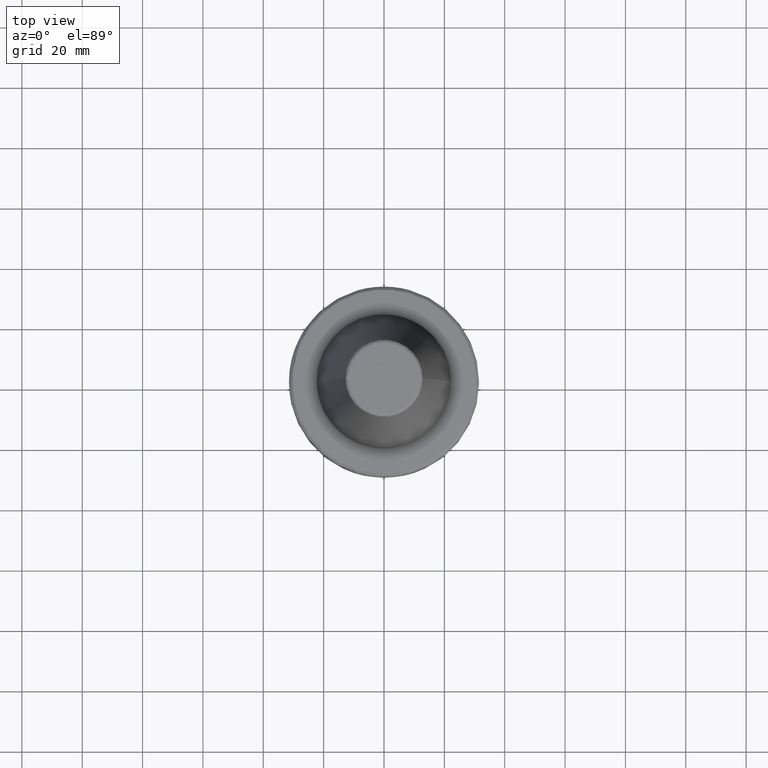
[diagram: clean part render]
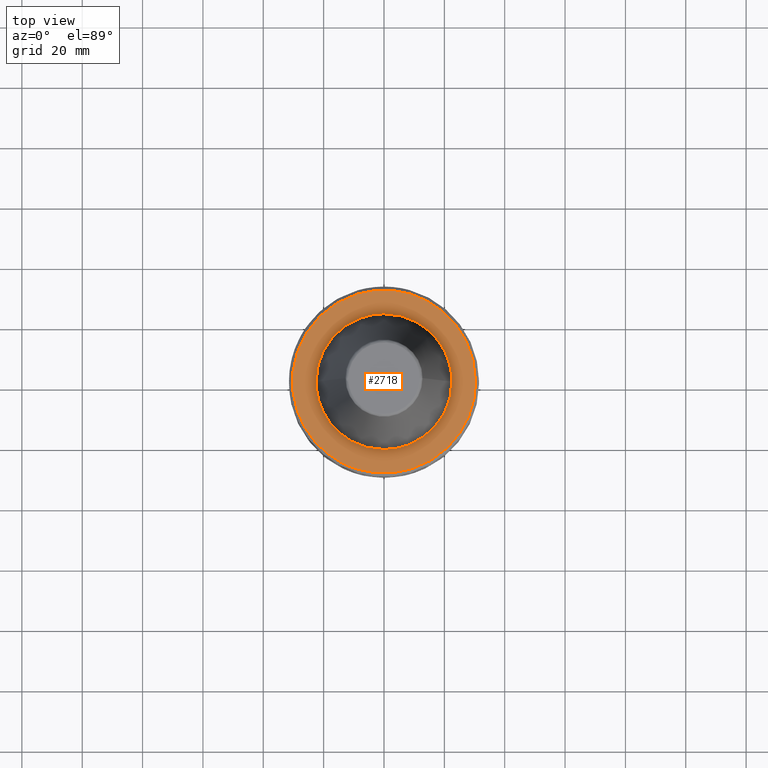
[diagram: same view with one face highlighted and labeled with its STEP entity id]
A machine part, top view. The second image highlights one B-rep face of the part: STEP entity #2718.
In plain terms, the highlighted planar face has unit normal (0, 0, 1).
Its self-contained STEP definition (entity closure, byte-faithful):
#1 = CARTESIAN_POINT ( 'NONE',  ( -22.74427513349489500, 20.07203035739386400, -2.000000000000000400 ) ) ;
#5 = CARTESIAN_POINT ( 'NONE',  ( -22.85963190511046200, 19.94021671517580800, -1.999999999999999600 ) ) ;
#7 = CARTESIAN_POINT ( 'NONE',  ( -12.45411383824668800, 18.74391560796942000, -2.000000000000000000 ) ) ;
#10 = CARTESIAN_POINT ( 'NONE',  ( -22.90887552212045400, 19.88352701772249300, -2.000000000000000000 ) ) ;
#14 = CARTESIAN_POINT ( 'NONE',  ( -22.94166126692783800, 19.84568985575299700, -1.999999999999999600 ) ) ;
#16 = CARTESIAN_POINT ( 'NONE',  ( -22.95701710977378300, 19.82792690337959100, -2.000000000000000000 ) ) ;
#20 = CARTESIAN_POINT ( 'NONE',  ( -25.76810133033408300, 16.00611813855153500, -2.000000000000000000 ) ) ;
#26 = CARTESIAN_POINT ( 'NONE',  ( -23.53005888113782600, 19.16329848517894500, -2.000000000000000000 ) ) ;
#29 = CARTESIAN_POINT ( 'NONE',  ( -24.32030747745346500, 18.16502189202181200, -2.000000000000000000 ) ) ;
#33 = PLANE ( 'NONE',  #1248 ) ;
#36 = CARTESIAN_POINT ( 'NONE',  ( -25.16654743505349500, 16.94516325679397500, -2.000000000000000000 ) ) ;
#37 = CARTESIAN_POINT ( 'NONE',  ( -25.57073822932812500, 16.32143328671059400, -2.000000000000000000 ) ) ;
#40 = CARTESIAN_POINT ( 'NONE',  ( -25.93380419484964600, 15.73567355049754100, -2.000000000000000400 ) ) ;
#41 = CARTESIAN_POINT ( 'NONE',  ( 14.23482895689605800, 17.42690797853921200, -2.000000000000000000 ) ) ;
#44 = CARTESIAN_POINT ( 'NONE',  ( -26.19035254647528200, 15.31113753084778000, -1.999999999999999600 ) ) ;
#47 = CARTESIAN_POINT ( 'NONE',  ( -15.43940690723676900, 26.11221914297657400, -2.000000000000000000 ) ) ;
#48 = CARTESIAN_POINT ( 'NONE',  ( -26.51982622996271700, 14.73806452990433000, -2.000000000000000000 ) ) ;
#52 = CARTESIAN_POINT ( 'NONE',  ( -6.311827170316271400, 21.59868843809181300, -2.000000000000000400 ) ) ;
#54 = CARTESIAN_POINT ( 'NONE',  ( -26.88217831967458300, 14.05718565633539500, -1.999999999999999600 ) ) ;
#56 = CARTESIAN_POINT ( 'NONE',  ( -27.03275052790322200, 13.76274605927693900, -2.000000000000000400 ) ) ;
#57 = CARTESIAN_POINT ( 'NONE',  ( -27.71196662878367800, 12.35204075575636700, -2.000000000000000400 ) ) ;
#62 = CARTESIAN_POINT ( 'NONE',  ( -28.01906288714868200, 11.62719581979966300, -2.000000000000000900 ) ) ;
#63 = CARTESIAN_POINT ( 'NONE',  ( -28.14553413830482900, 11.31424795217510100, -2.000000000000000400 ) ) ;
#66 = CARTESIAN_POINT ( 'NONE',  ( -28.22870576551996200, 11.10510492088566000, -2.000000000000000000 ) ) ;
#67 = CARTESIAN_POINT ( 'NONE',  ( -28.26907202198120900, 11.00196227168859600, -2.000000000000000400 ) ) ;
#70 = CARTESIAN_POINT ( 'NONE',  ( -8.876639667081775500, 20.67712824912126000, -1.999999999999999600 ) ) ;
#71 = CARTESIAN_POINT ( 'NONE',  ( -28.47452982408349300, 10.46812696467869600, -1.999999999999999600 ) ) ;
#72 = CARTESIAN_POINT ( 'NONE',  ( -28.70639203150427600, 9.822481284262337900, -1.999999999999999600 ) ) ;
#76 = CARTESIAN_POINT ( 'NONE',  ( -28.95119541873344800, 9.060402194435393900, -2.000000000000000400 ) ) ;
#79 = CARTESIAN_POINT ( 'NONE',  ( -29.05060347295414000, 8.731905628222161700, -2.000000000000000400 ) ) ;
#80 = CARTESIAN_POINT ( 'NONE',  ( -27.56911341679235200, -12.65715468430707000, -1.999999999999999600 ) ) ;
#82 = CARTESIAN_POINT ( 'NONE',  ( -29.11565157950942900, 8.512487641412963800, -2.000000000000000000 ) ) ;
#84 = CARTESIAN_POINT ( 'NONE',  ( -29.14718843085491800, 8.403888779285168200, -2.000000000000000400 ) ) ;
#87 = CARTESIAN_POINT ( 'NONE',  ( -29.30556523496521100, 7.846641085875400100, -1.999999999999999600 ) ) ;
#88 = EDGE_CURVE ( 'NONE', #3024, #217, #2735, .T. ) ;
#89 = CARTESIAN_POINT ( 'NONE',  ( -29.48014449816052000, 7.174164015066840400, -2.000000000000000000 ) ) ;
#90 = CARTESIAN_POINT ( 'NONE',  ( -29.63151440875023100, 6.496017186183009600, -2.000000000000000400 ) ) ;
#93 = CARTESIAN_POINT ( 'NONE',  ( -29.72727004856434300, 6.042659354021502300, -1.999999999999999600 ) ) ;
#94 = CARTESIAN_POINT ( 'NONE',  ( -29.90139651576610900, 5.127975516582079500, -2.000000000000000000 ) ) ;
#98 = CARTESIAN_POINT ( 'NONE',  ( -29.77223559838184000, 5.817129645461294600, -1.999999999999999600 ) ) ;
#102 = CARTESIAN_POINT ( 'NONE',  ( -29.97681941065975800, 4.666952077853124200, -2.000000000000000000 ) ) ;
#103 = CARTESIAN_POINT ( 'NONE',  ( -22.26685811245867800, -3.232003118982634100, -2.000000000000000400 ) ) ;
#107 = VERTEX_POINT ( 'NONE', #2750 ) ;
#108 = CARTESIAN_POINT ( 'NONE',  ( -30.10629643372194800, 3.741730494776212400, -2.000000000000000000 ) ) ;
#109 = CARTESIAN_POINT ( 'NONE',  ( -30.16019740235820700, 3.279177264162868700, -2.000000000000000000 ) ) ;
#111 = CARTESIAN_POINT ( 'NONE',  ( -30.29076611537317700, 1.876886031486835900, -1.999999999999999600 ) ) ;
#112 = CARTESIAN_POINT ( 'NONE',  ( -30.33429755140609900, 0.9389045380466208800, -2.000000000000000000 ) ) ;
#113 = CARTESIAN_POINT ( 'NONE',  ( 7.077598297748011200, -21.36646605497421400, -1.999999999999999600 ) ) ;
#115 = CARTESIAN_POINT ( 'NONE',  ( -30.33432308672116700, -0.4694522690233137700, -1.999999999999999600 ) ) ;
#119 = CARTESIAN_POINT ( 'NONE',  ( -19.49767185047898000, 23.23815666972267400, -2.000000000000000000 ) ) ;
#120 = CARTESIAN_POINT ( 'NONE',  ( -30.31800518701832200, -1.173009827449650800, -1.999999999999999600 ) ) ;
#125 = CARTESIAN_POINT ( 'NONE',  ( -30.27719128627488800, -1.875636118213055200, -1.999999999999999600 ) ) ;
#128 = CARTESIAN_POINT ( 'NONE',  ( -30.24453846332581700, -2.343846697019108300, -1.999999999999999600 ) ) ;
#130 = CARTESIAN_POINT ( 'NONE',  ( -30.22537985283778300, -2.579034885946253700, -1.999999999999999600 ) ) ;
#131 = CARTESIAN_POINT ( 'NONE',  ( 18.09567323296723600, -13.37161851842544600, -2.000000000000000400 ) ) ;
#135 = CARTESIAN_POINT ( 'NONE',  ( -29.97421796203893200, -4.666058091201950500, -1.999999999999999600 ) ) ;
#136 = CARTESIAN_POINT ( 'NONE',  ( -29.85796792916144300, -5.359648912732293300, -2.000000000000000000 ) ) ;
#139 = CARTESIAN_POINT ( 'NONE',  ( -10.77960606552710700, 19.74975943747817600, -1.999999999999999100 ) ) ;
#140 = CARTESIAN_POINT ( 'NONE',  ( -29.72993185420690700, -6.042936982040094700, -2.000000000000000400 ) ) ;
#143 = CARTESIAN_POINT ( 'NONE',  ( -29.58636063600052100, -6.722709471456701300, -2.000000000000000400 ) ) ;
#144 = CARTESIAN_POINT ( 'NONE',  ( -29.39167438073566900, -7.509625110966484700, -2.000000000000000000 ) ) ;
#147 = CARTESIAN_POINT ( 'NONE',  ( -29.30241173547413100, -7.845556328297187900, -1.999999999999999600 ) ) ;
#152 = CARTESIAN_POINT ( 'NONE',  ( -29.24160871002880000, -8.069217508193395000, -2.000000000000000000 ) ) ;
#154 = CARTESIAN_POINT ( 'NONE',  ( -29.21013559763005300, -8.182394721420422500, -2.000000000000000000 ) ) ;
#160 = CARTESIAN_POINT ( 'NONE',  ( -29.05377656786467400, -8.732617317334348400, -1.999999999999999600 ) ) ;
#161 = CARTESIAN_POINT ( 'NONE',  ( -28.85137362384601900, -9.388095371093131200, -2.000000000000000000 ) ) ;
#166 = CARTESIAN_POINT ( 'NONE',  ( -28.58938566629895900, -10.14443890980365700, -2.000000000000000000 ) ) ;
#167 = CARTESIAN_POINT ( 'NONE',  ( -28.47156557245192600, -10.46679024267787200, -1.999999999999999600 ) ) ;
#170 = CARTESIAN_POINT ( 'NONE',  ( 9.592456293173178500, -20.36140222349972000, -2.000000000000000000 ) ) ;
#171 = CARTESIAN_POINT ( 'NONE',  ( -28.35057164199875500, -10.79019309048265500, -1.999999999999999600 ) ) ;
#174 = CARTESIAN_POINT ( 'NONE',  ( -27.40149213972515000, -13.01349206531847000, -2.000000000000000400 ) ) ;
#179 = CARTESIAN_POINT ( 'NONE',  ( -27.32835918792548600, -13.16565572122048900, -1.999999999999999600 ) ) ;
#180 = CARTESIAN_POINT ( 'NONE',  ( -27.27931605080835800, -13.26697541081484600, -2.000000000000000000 ) ) ;
#184 = CARTESIAN_POINT ( 'NONE',  ( -27.25412894741309000, -13.31863642250864500, -2.000000000000000000 ) ) ;
#186 = CARTESIAN_POINT ( 'NONE',  ( -27.03553885903272700, -13.76390743001934200, -2.000000000000000900 ) ) ;
#190 = CARTESIAN_POINT ( 'NONE',  ( -26.73137068437545200, -14.35080375620341000, -1.999999999999999600 ) ) ;
#192 = CARTESIAN_POINT ( 'NONE',  ( -26.35425704784596900, -15.02361902338199000, -2.000000000000000000 ) ) ;
#200 = CARTESIAN_POINT ( 'NONE',  ( -26.16013753805722800, -15.35705237862891100, -2.000000000000000000 ) ) ;
#204 = CARTESIAN_POINT ( 'NONE',  ( -26.07575145710692200, -15.49931504266136700, -2.000000000000000900 ) ) ;
#205 = CARTESIAN_POINT ( 'NONE',  ( 16.97492298802049500, -14.77047730850442300, -2.000000000000000400 ) ) ;
#206 = CARTESIAN_POINT ( 'NONE',  ( -26.01922917973411500, -15.59401518638097700, -2.000000000000000400 ) ) ;
#207 = CARTESIAN_POINT ( 'NONE',  ( -22.22578251303937300, 3.547587136159190200, -2.000000000000000400 ) ) ;
#208 = CARTESIAN_POINT ( 'NONE',  ( -25.98981554074997300, -15.64298255709391600, -1.999999999999999100 ) ) ;
#209 = CARTESIAN_POINT ( 'NONE',  ( -25.52221399129255300, -16.41682807450592900, -1.999999999999999600 ) ) ;
#211 = DIRECTION ( 'NONE',  ( -1.000000000000000000, 0.0000000000000000000, 0.0000000000000000000 ) ) ;
#212 = CARTESIAN_POINT ( 'NONE',  ( -24.81865136490808500, -17.47798243997911200, -2.000000000000000400 ) ) ;
#213 = CARTESIAN_POINT ( 'NONE',  ( -23.92184459151486200, -18.66116237468925100, -1.999999999999999600 ) ) ;
#215 = DIRECTION ( 'NONE',  ( -0.0000000000000000000, -0.0000000000000000000, -1.000000000000000000 ) ) ;
#217 = VERTEX_POINT ( 'NONE', #2805 ) ;
#218 = CARTESIAN_POINT ( 'NONE',  ( 0.9376832974930600100, -22.49999999969968200, -2.000000000000000000 ) ) ;
#220 = CARTESIAN_POINT ( 'NONE',  ( -23.21599663866084000, -19.52455767311396100, -2.000000000000000000 ) ) ;
#221 = CARTESIAN_POINT ( 'NONE',  ( 0.0000000000000000000, 0.0000000000000000000, -2.000000000000001800 ) ) ;
#222 = CARTESIAN_POINT ( 'NONE',  ( -23.09558507378441300, -19.66645775180075300, -2.000000000000000400 ) ) ;
#225 = CARTESIAN_POINT ( 'NONE',  ( -23.04372570766790300, -19.72708847695778200, -1.999999999999999600 ) ) ;
#227 = CARTESIAN_POINT ( 'NONE',  ( -12.89753869061149200, 18.43654460326351000, -2.000000000000000400 ) ) ;
#228 = CARTESIAN_POINT ( 'NONE',  ( -23.00909626142560100, -19.76746816166688700, -2.000000000000000000 ) ) ;
#229 = CARTESIAN_POINT ( 'NONE',  ( -22.99072366905366100, -19.78883184659601100, -2.000000000000000400 ) ) ;
#230 = CARTESIAN_POINT ( 'NONE',  ( 22.35533047487733400, -2.552790021918645500, -2.000000000000000000 ) ) ;
#232 = CARTESIAN_POINT ( 'NONE',  ( 8.749999996933823400, 29.04493313135358400, -1.999999999992751600 ) ) ;
#234 = CARTESIAN_POINT ( 'NONE',  ( -22.45144898418185900, -20.41434030225339300, -2.000000000000000000 ) ) ;
#236 = CARTESIAN_POINT ( 'NONE',  ( -21.63358037542373300, -21.29054291791273500, -2.000000000000000000 ) ) ;
#240 = CARTESIAN_POINT ( 'NONE',  ( -5.760236844342944800, 21.75046461407291100, -2.000000000000000000 ) ) ;
#241 = CARTESIAN_POINT ( 'NONE',  ( -20.62082946440128600, -22.25393053857913000, -2.000000000000000000 ) ) ;
#244 = CARTESIAN_POINT ( 'NONE',  ( -20.09981129202223800, -22.72091215784495700, -2.000000000000000000 ) ) ;
#247 = CARTESIAN_POINT ( 'NONE',  ( -19.83564152661577000, -22.95072491971102100, -2.000000000000000000 ) ) ;
#251 = CARTESIAN_POINT ( 'NONE',  ( -19.70264147410828700, -23.06471178870235100, -2.000000000000000000 ) ) ;
#258 = CARTESIAN_POINT ( 'NONE',  ( -19.64544534378989800, -23.11336626571112900, -2.000000000000000400 ) ) ;
#259 = CARTESIAN_POINT ( 'NONE',  ( -19.60727101072980000, -23.14575879743402000, -2.000000000000000000 ) ) ;
#263 = CARTESIAN_POINT ( 'NONE',  ( -19.58684254800216400, -23.16304725638891400, -2.000000000000000000 ) ) ;
#264 = B_SPLINE_CURVE_WITH_KNOTS ( 'NONE', 3,
 ( #1228, #2117, #1259, #1260, #1265, #1266, #1267, #1269, #1273, #1274, #3228, #1251, #2924, #1277, #1280, #1285, #1286, #1289, #1292, #2089, #320, #1799, #1297, #1298, #1301, #1302, #1309, #1310, #1313, #1314, #1319, #1325, #1326, #1329, #1331, #1334, #1340, #1336, #1344, #1345, #1348, #1354, #1356, #1361, #1363, #1367, #1368, #1371, #1373, #1379, #1381, #1384 ),
 .UNSPECIFIED., .F., .F.,
 ( 4, 1, 1, 1, 1, 2, 2, 1, 1, 1, 1, 2, 2, 1, 1, 1, 2, 2, 2, 1, 1, 1, 2, 2, 1, 1, 1, 1, 2, 2, 1, 1, 1, 1, 2, 2, 4 ),
 ( 0.0000000000000000000, 0.06250000000000258100, 0.09375000000000398300, 0.1093750000000046400, 0.1171875000000049500, 0.1210937500000051600, 0.1250000000000053800, 0.1875000000000087200, 0.2187500000000103800, 0.2343750000000111000, 0.2421875000000115500, 0.2460937500000116900, 0.2500000000000118200, 0.3125000000000116600, 0.3437500000000117100, 0.3593750000000117100, 0.3671875000000117100, 0.3750000000000117100, 0.5000000000000102100, 0.5625000000000094400, 0.5937500000000089900, 0.6093750000000086600, 0.6171875000000084400, 0.6250000000000081000, 0.6875000000000062200, 0.7187500000000051100, 0.7343750000000046600, 0.7421875000000044400, 0.7460937500000044400, 0.7500000000000043300, 0.8125000000000030000, 0.8437500000000023300, 0.8593750000000020000, 0.8671875000000017800, 0.8710937500000016700, 0.8750000000000015500, 1.000000000000000000 ),
 .UNSPECIFIED. ) ;
#266 = CARTESIAN_POINT ( 'NONE',  ( -18.99907164106429000, -23.65931423672834600, -2.000000000000000400 ) ) ;
#268 = CARTESIAN_POINT ( 'NONE',  ( -18.11984527921346500, -24.34790061047980500, -2.000000000000000400 ) ) ;
#272 = B_SPLINE_CURVE_WITH_KNOTS ( 'NONE', 3,
 ( #3025, #3073, #3010, #3004, #2998, #2989, #2986, #2978, #2970, #2963, #2957, #2949, #2945, #2938, #2933, #2928, #2925, #2921, #2917, #2915, #2910, #2905, #2900, #2895, #2890, #2886, #2881, #2877, #2875, #2871, #2864, #2862, #2855, #2850, #2843, #2839, #2830, #2827, #2819, #2809, #2800, #2796, #2788, #2780, #2775, #2770, #2765, #2760, #2752, #2740, #2734, #2729 ),
 .UNSPECIFIED., .F., .F.,
 ( 4, 1, 1, 1, 1, 2, 2, 1, 1, 1, 1, 2, 2, 1, 1, 1, 2, 2, 2, 1, 1, 1, 2, 2, 1, 1, 1, 1, 2, 2, 1, 1, 1, 1, 2, 2, 4 ),
 ( 0.0000000000000000000, 0.06249999999999943100, 0.09374999999999912600, 0.1093749999999989700, 0.1171874999999989500, 0.1210937499999989700, 0.1249999999999989700, 0.1874999999999991400, 0.2187499999999992500, 0.2343749999999992800, 0.2421874999999993100, 0.2460937499999993600, 0.2499999999999994400, 0.3124999999999989500, 0.3437499999999986700, 0.3593749999999986100, 0.3671874999999986100, 0.3749999999999985600, 0.4999999999999994400, 0.5625000000000000000, 0.5937500000000002200, 0.6093750000000003300, 0.6171875000000001100, 0.6250000000000000000, 0.6874999999999998900, 0.7187499999999996700, 0.7343749999999994400, 0.7421874999999993300, 0.7460937499999993300, 0.7499999999999992200, 0.8124999999999988900, 0.8437499999999987800, 0.8593749999999986700, 0.8671874999999985600, 0.8710937499999986700, 0.8749999999999986700, 1.000000000000000000 ),
 .UNSPECIFIED. ) ;
#279 = CARTESIAN_POINT ( 'NONE',  ( -17.05157918389951600, -25.09305249305750300, -2.000000000000000000 ) ) ;
#282 = CARTESIAN_POINT ( 'NONE',  ( -16.03423993750193300, -25.75022878978427300, -2.000000000000000000 ) ) ;
#286 = CARTESIAN_POINT ( 'NONE',  ( -15.99463289518533000, -25.77484943083410900, -2.000000000000000000 ) ) ;
#288 = CARTESIAN_POINT ( 'NONE',  ( -15.97329696644437600, -25.78807603657673700, -2.000000000000000400 ) ) ;
#291 = CARTESIAN_POINT ( 'NONE',  ( -15.36878485436984400, -26.16193571592875600, -1.999999999999999600 ) ) ;
#292 = CARTESIAN_POINT ( 'NONE',  ( 13.15617446369669900, 18.25763943838624200, -2.000000000000000000 ) ) ;
#298 = CARTESIAN_POINT ( 'NONE',  ( -14.47295486607066600, -26.67469011816003300, -2.000000000000000000 ) ) ;
#303 = CARTESIAN_POINT ( 'NONE',  ( -16.58941387358899500, 25.40707027271230000, -2.000000000000000400 ) ) ;
#307 = CARTESIAN_POINT ( 'NONE',  ( -12.44322710589327500, -27.66477778677638400, -2.000000000000000000 ) ) ;
#308 = CARTESIAN_POINT ( 'NONE',  ( -29.89876974088354400, -5.127262311185028800, -2.000000000000000000 ) ) ;
#312 = CARTESIAN_POINT ( 'NONE',  ( -20.23421254314037700, 9.840075726866714900, -2.000000000000000000 ) ) ;
#313 = CARTESIAN_POINT ( 'NONE',  ( -12.38423346044858800, -27.69118654036164200, -2.000000000000000000 ) ) ;
#314 = CARTESIAN_POINT ( 'NONE',  ( -12.34488282749137300, -27.70875195747186500, -2.000000000000000000 ) ) ;
#317 = CARTESIAN_POINT ( 'NONE',  ( -12.32358534066948500, -27.71822966472337800, -1.999999999999999600 ) ) ;
#318 = CARTESIAN_POINT ( 'NONE',  ( -11.14803108244894700, -28.23998999074216000, -2.000000000000000000 ) ) ;
#320 = CARTESIAN_POINT ( 'NONE',  ( 20.53460649960470600, -22.32883463494074800, -2.000000000000000400 ) ) ;
#323 = CARTESIAN_POINT ( 'NONE',  ( -9.962864446378267400, -28.67954878818557800, -2.000000000000000000 ) ) ;
#324 = CARTESIAN_POINT ( 'NONE',  ( -8.749999991324797200, -29.04493313295421000, -1.999999999992751600 ) ) ;
#339 = CARTESIAN_POINT ( 'NONE',  ( -28.14853134401330000, -11.31520368950244700, -2.000000000000000000 ) ) ;
#365 = CARTESIAN_POINT ( 'NONE',  ( -21.66821451549525800, 6.061954555056666500, -1.999999999999999600 ) ) ;
#409 = CARTESIAN_POINT ( 'NONE',  ( -0.9376832974467356200, 22.49999999968776300, -1.999999999999999100 ) ) ;
#417 = CARTESIAN_POINT ( 'NONE',  ( 8.749999996934589000, -29.04493313220076400, -1.999999999992751600 ) ) ;
#433 = CARTESIAN_POINT ( 'NONE',  ( 6.311827170300384500, -21.59868843810837500, -2.000000000000000000 ) ) ;
#440 = CARTESIAN_POINT ( 'NONE',  ( 22.23055402302106000, 3.476789302941889900, -2.000000000000000000 ) ) ;
#449 = CARTESIAN_POINT ( 'NONE',  ( -19.38459928434236400, 11.42367658504103800, -2.000000000000000000 ) ) ;
#462 = CARTESIAN_POINT ( 'NONE',  ( -7.724209186817371500, 21.13756592304818200, -2.000000000000000000 ) ) ;
#466 = CARTESIAN_POINT ( 'NONE',  ( 12.89753869061943100, -18.43654460327223900, -2.000000000000000000 ) ) ;
#467 = CARTESIAN_POINT ( 'NONE',  ( -8.204285172075136900, 20.95096463665006300, -1.999999999999999600 ) ) ;
#472 = EDGE_CURVE ( 'NONE', #2331, #2520, #1621, .T. ) ;
#473 = CARTESIAN_POINT ( 'NONE',  ( 11.25404723059033600, -19.48537107558473700, -2.000000000000000400 ) ) ;
#489 = CARTESIAN_POINT ( 'NONE',  ( -12.85604715760490700, 18.46550698999620700, -2.000000000000000000 ) ) ;
#497 = CARTESIAN_POINT ( 'NONE',  ( -20.46398431306907600, 9.355263630693089600, -2.000000000000000000 ) ) ;
#499 = CARTESIAN_POINT ( 'NONE',  ( -21.60988749947046400, 6.266023070086096600, -1.999999999999999600 ) ) ;
#504 = AXIS2_PLACEMENT_3D ( 'NONE', #3279, #3273, #3266 ) ;
#507 = CARTESIAN_POINT ( 'NONE',  ( -27.42817554046961000, 12.96413626343252500, -2.000000000000000000 ) ) ;
#539 = CIRCLE ( 'NONE', #1460, 30.33431457994048900 ) ;
#543 = CARTESIAN_POINT ( 'NONE',  ( -10.24119793680148800, -20.03471693759241400, -2.000000000000000900 ) ) ;
#545 = CARTESIAN_POINT ( 'NONE',  ( -10.63760083040858400, 19.82661143118019400, -1.999999999999999600 ) ) ;
#561 = CARTESIAN_POINT ( 'NONE',  ( -30.16040121441401600, -3.277170787920063300, -2.000000000000000000 ) ) ;
#579 = EDGE_CURVE ( 'NONE', #107, #1530, #1866, .T. ) ;
#599 = CARTESIAN_POINT ( 'NONE',  ( -4.407752425157927900, 22.07264215634648600, -2.000000000000000000 ) ) ;
#611 = CARTESIAN_POINT ( 'NONE',  ( 21.85917140703392600, -5.344980240130211300, -2.000000000000000000 ) ) ;
#632 = CARTESIAN_POINT ( 'NONE',  ( -3.262541282879384900, 22.26342374189052700, -1.999999999999999600 ) ) ;
#642 = B_SPLINE_CURVE_WITH_KNOTS ( 'NONE', 3,
 ( #1395, #1397, #2823, #1419, #1424, #1427, #1431, #1433, #1441, #1445, #1448, #1457, #1461, #1465, #1469, #1471, #1475, #1480, #1493, #1494, #778, #2342, #543, #1499, #1501, #1504, #1508, #1509, #1512, #1515, #1518, #1519, #1229, #2897, #1005, #1521, #1525, #1529, #1531, #1535, #1536, #1539, #1540, #1544, #1546, #1554, #1551, #1555, #1561, #1562, #1566, #1569, #1574, #1575, #1584, #1585, #1587, #1591, #1593, #2654, #812, #2376, #1596, #1601, #1602, #1606, #1610, #1611, #1615, #1618, #1624, #1625, #1628, #1629, #1075, #2704, #845, #1636, #1642, #1644, #1651, #1653, #1656, #1657, #1661, #1848, #103, #1557, #1668, #1670, #1680, #1682, #1685, #1691 ),
 .UNSPECIFIED., .F., .F.,
 ( 4, 1, 2, 2, 1, 1, 2, 2, 1, 1, 1, 2, 2, 1, 1, 1, 2, 2, 1, 1, 1, 2, 2, 1, 1, 1, 2, 2, 1, 1, 1, 1, 2, 2, 1, 1, 1, 1, 2, 2, 1, 1, 1, 1, 2, 2, 1, 1, 1, 1, 2, 2, 1, 1, 1, 1, 1, 1, 2, 2, 1, 1, 1, 1, 1, 2, 2, 4 ),
 ( 0.0000000000000000000, 0.03125000000000049300, 0.04687500000000075600, 0.06250000000000101300, 0.09375000000000154000, 0.1093750000000018500, 0.1171875000000019800, 0.1250000000000021100, 0.1562500000000027800, 0.1718750000000030800, 0.1796875000000032200, 0.1835937500000032800, 0.1875000000000033600, 0.2187500000000046400, 0.2343750000000053300, 0.2421875000000056900, 0.2460937500000058600, 0.2500000000000060500, 0.2812500000000082700, 0.2968750000000094900, 0.3046875000000102100, 0.3085937500000106000, 0.3125000000000109900, 0.3437500000000137700, 0.3593750000000151000, 0.3671875000000156500, 0.3710937500000158800, 0.3750000000000161500, 0.4062500000000171000, 0.4218750000000177600, 0.4296875000000181500, 0.4335937500000183700, 0.4355468750000185400, 0.4375000000000186500, 0.4687500000000196000, 0.4843750000000201500, 0.4921875000000203200, 0.4960937500000204300, 0.4980468750000205400, 0.5000000000000206500, 0.5312500000000214300, 0.5468750000000219800, 0.5546875000000222000, 0.5585937500000222000, 0.5605468750000224300, 0.5625000000000225400, 0.5937500000000222000, 0.6093750000000220900, 0.6171875000000220900, 0.6210937500000218700, 0.6230468750000218700, 0.6250000000000219800, 0.6875000000000192100, 0.7187500000000178700, 0.7343750000000171000, 0.7421875000000167600, 0.7460937500000165400, 0.7480468750000164300, 0.7490234375000163200, 0.7500000000000163200, 0.8125000000000115500, 0.8437500000000093300, 0.8593750000000082200, 0.8671875000000076600, 0.8710937500000074400, 0.8730468750000073300, 0.8750000000000072200, 1.000000000000000000 ),
 .UNSPECIFIED. ) ;
#645 = CARTESIAN_POINT ( 'NONE',  ( 21.61971389857417200, -6.232033470710762300, -1.999999999999999600 ) ) ;
#660 = FACE_BOUND ( 'NONE', #1307, .T. ) ;
#661 = CARTESIAN_POINT ( 'NONE',  ( 20.46398431307990500, -9.355263630698036800, -2.000000000000000000 ) ) ;
#670 = VERTEX_POINT ( 'NONE', #417 ) ;
#674 = CARTESIAN_POINT ( 'NONE',  ( 21.96490730015510500, 4.935189708913424200, -1.999999999999999600 ) ) ;
#687 = CARTESIAN_POINT ( 'NONE',  ( 20.88600311958302000, 8.410819844224242600, -2.000000000000000400 ) ) ;
#690 = CARTESIAN_POINT ( 'NONE',  ( -22.35533047486551800, 2.552790021896540000, -2.000000000000000000 ) ) ;
#709 = CARTESIAN_POINT ( 'NONE',  ( -19.06655336706511500, 23.59447132602710400, -2.000000000000000000 ) ) ;
#710 = CARTESIAN_POINT ( 'NONE',  ( -18.05475750543965000, 13.42669682354473100, -2.000000000000000000 ) ) ;
#712 = CARTESIAN_POINT ( 'NONE',  ( 2.369549474642866200E-016, 22.49999999240569400, -2.000000000088731700 ) ) ;
#718 = CARTESIAN_POINT ( 'NONE',  ( -3.034061665793987800, 22.29571984404857700, -2.000000000000000000 ) ) ;
#719 = ORIENTED_EDGE ( 'NONE', *, *, #1383, .T. ) ;
#724 = CARTESIAN_POINT ( 'NONE',  ( -18.37781606790365500, 12.98324454131292100, -2.000000000000000000 ) ) ;
#727 = CARTESIAN_POINT ( 'NONE',  ( -16.97492298798715600, 14.77047730852122200, -1.999999999999999600 ) ) ;
#734 = CARTESIAN_POINT ( 'NONE',  ( -21.60558318935551700, 6.280856013146851600, -2.000000000000000000 ) ) ;
#735 = CARTESIAN_POINT ( 'NONE',  ( 8.515026487156868400, -20.82705770125688000, -2.000000000000000400 ) ) ;
#739 = FACE_OUTER_BOUND ( 'NONE', #1622, .T. ) ;
#743 = CARTESIAN_POINT ( 'NONE',  ( -27.13208276794342000, 13.56586758000932000, -2.000000000000000400 ) ) ;
#757 = CARTESIAN_POINT ( 'NONE',  ( -20.25956629417725500, 9.787764662849676600, -2.000000000000000000 ) ) ;
#762 = CARTESIAN_POINT ( 'NONE',  ( 12.98334881064969400, -18.37621701346013800, -2.000000000000000000 ) ) ;
#778 = CARTESIAN_POINT ( 'NONE',  ( -9.185684074858587100, -20.54811786499791300, -2.000000000000000000 ) ) ;
#782 = CARTESIAN_POINT ( 'NONE',  ( -16.25141586172648200, 15.56611398354324300, -1.999999999999999600 ) ) ;
#810 = ORIENTED_EDGE ( 'NONE', *, *, #472, .T. ) ;
#812 = CARTESIAN_POINT ( 'NONE',  ( -19.14492484718338600, -11.82055077471480000, -2.000000000000000000 ) ) ;
#820 = CARTESIAN_POINT ( 'NONE',  ( 19.83437364696299100, -10.63289914828475300, -2.000000000000000400 ) ) ;
#821 = CARTESIAN_POINT ( 'NONE',  ( -12.93548555504397200, 27.44666887130794600, -2.000000000000000000 ) ) ;
#834 = ORIENTED_EDGE ( 'NONE', *, *, #88, .T. ) ;
#842 = CARTESIAN_POINT ( 'NONE',  ( -19.44406998659805900, 23.28309572739205500, -2.000000000000000400 ) ) ;
#845 = CARTESIAN_POINT ( 'NONE',  ( -21.52040276706827300, -6.567616659362483000, -2.000000000000000400 ) ) ;
#849 = CARTESIAN_POINT ( 'NONE',  ( -19.30692970593337800, 11.55403222318981800, -2.000000000000000400 ) ) ;
#858 = CARTESIAN_POINT ( 'NONE',  ( 3.721454427202582200, -22.19134929415788800, -2.000000000000000000 ) ) ;
#864 = CARTESIAN_POINT ( 'NONE',  ( 16.55873695105634300, -15.23353903051445200, -2.000000000000000000 ) ) ;
#866 = CARTESIAN_POINT ( 'NONE',  ( 22.50000000383212400, 0.0000000000000000000, -2.000000000159716700 ) ) ;
#875 = CARTESIAN_POINT ( 'NONE',  ( -16.65456653296771000, 15.12870295003455800, -1.999999999999999600 ) ) ;
#877 = CARTESIAN_POINT ( 'NONE',  ( 18.74262716103524800, -12.45787699473964600, -2.000000000000000000 ) ) ;
#883 = CARTESIAN_POINT ( 'NONE',  ( 19.38459928435964800, -11.42367658503267000, -1.999999999999999600 ) ) ;
#884 = ORIENTED_EDGE ( 'NONE', *, *, #1321, .T. ) ;
#897 = CARTESIAN_POINT ( 'NONE',  ( -22.47511061866654500, 1.248191352262064200, -2.000000000000000400 ) ) ;
#911 = CARTESIAN_POINT ( 'NONE',  ( -16.75142365531626600, 15.02184946813319800, -2.000000000000000400 ) ) ;
#922 = CARTESIAN_POINT ( 'NONE',  ( 20.25956629418797300, -9.787764662854856500, -2.000000000000000000 ) ) ;
#931 = CARTESIAN_POINT ( 'NONE',  ( 20.21598028064943600, 9.877475327688898700, -1.999999999999999600 ) ) ;
#932 = CARTESIAN_POINT ( 'NONE',  ( -8.255231769630949400, 20.93093896391744100, -1.999999999999999600 ) ) ;
#943 = CARTESIAN_POINT ( 'NONE',  ( 15.31903564300474900, -16.48176112941034800, -2.000000000000000400 ) ) ;
#950 = CARTESIAN_POINT ( 'NONE',  ( 22.49999999920854100, -0.4999146539146025500, -2.000000000000000400 ) ) ;
#973 = CARTESIAN_POINT ( 'NONE',  ( -0.1820058870000000300, -29.39347233099999800, -2.000000000000000000 ) ) ;
#1005 = CARTESIAN_POINT ( 'NONE',  ( -13.66265596750168100, -17.88548974564520900, -2.000000000000000000 ) ) ;
#1033 = CARTESIAN_POINT ( 'NONE',  ( -9.356263315213990200, 28.86229184569882700, -2.000000000000000400 ) ) ;
#1053 = CARTESIAN_POINT ( 'NONE',  ( -19.54990844444056100, 23.19423031967894700, -2.000000000000000000 ) ) ;
#1075 = CARTESIAN_POINT ( 'NONE',  ( -21.26506413721694600, -7.364013759587601600, -2.000000000000000400 ) ) ;
#1088 = CARTESIAN_POINT ( 'NONE',  ( -22.50000000382695500, 0.0000000000000000000, -2.000000000159716700 ) ) ;
#1091 = CARTESIAN_POINT ( 'NONE',  ( -15.91831110411315300, 25.82205332775847500, -2.000000000000000900 ) ) ;
#1102 = CARTESIAN_POINT ( 'NONE',  ( -18.01441623487265200, 13.48077742695399000, -2.000000000000000000 ) ) ;
#1115 = CARTESIAN_POINT ( 'NONE',  ( 19.27339412477264000, -11.60976662513526700, -2.000000000000000000 ) ) ;
#1119 = CARTESIAN_POINT ( 'NONE',  ( 5.981198453491598100, -21.69074922285973600, -1.999999999999999600 ) ) ;
#1126 = CARTESIAN_POINT ( 'NONE',  ( 19.30692970594735400, -11.55403222318821600, -1.999999999999999600 ) ) ;
#1128 = CARTESIAN_POINT ( 'NONE',  ( 7.724209186806799500, -21.13756592306327400, -1.999999999999999600 ) ) ;
#1142 = CARTESIAN_POINT ( 'NONE',  ( 19.03860170088360700, -11.99648927034992400, -2.000000000000000000 ) ) ;
#1164 = CARTESIAN_POINT ( 'NONE',  ( 18.01441623488102600, -13.48077742696229800, -1.999999999999999600 ) ) ;
#1179 = CARTESIAN_POINT ( 'NONE',  ( 19.24035445529066700, -11.66444419788550100, -2.000000000000000000 ) ) ;
#1181 = CARTESIAN_POINT ( 'NONE',  ( 2.369549474642866200E-016, 22.49999999240569400, -2.000000000088731700 ) ) ;
#1186 = CARTESIAN_POINT ( 'NONE',  ( 20.24217972225057600, -9.823671784000897100, -2.000000000000000000 ) ) ;
#1189 = CARTESIAN_POINT ( 'NONE',  ( -10.92259063103403000, 19.67149576774667000, -2.000000000000000400 ) ) ;
#1191 = CARTESIAN_POINT ( 'NONE',  ( -15.05843738334589500, 16.71858814580128400, -2.000000000000000000 ) ) ;
#1197 = CARTESIAN_POINT ( 'NONE',  ( 5.760236844339123900, -21.75046461408626500, -2.000000000000000000 ) ) ;
#1228 = CARTESIAN_POINT ( 'NONE',  ( 8.749999996934589000, -29.04493313220076400, -1.999999999992751600 ) ) ;
#1229 = CARTESIAN_POINT ( 'NONE',  ( -12.76828957942247400, -18.52629151119727500, -1.999999999999999600 ) ) ;
#1232 = CARTESIAN_POINT ( 'NONE',  ( -14.47853372200813600, 17.22783812893316500, -2.000000000000000000 ) ) ;
#1248 = AXIS2_PLACEMENT_3D ( 'NONE', #973, #3285, #2348 ) ;
#1251 = CARTESIAN_POINT ( 'NONE',  ( 16.06417685901417900, -25.73715094431327100, -2.000000000000000000 ) ) ;
#1252 = CARTESIAN_POINT ( 'NONE',  ( -14.94568572969083100, 16.81900532028634400, -2.000000000000000000 ) ) ;
#1259 = CARTESIAN_POINT ( 'NONE',  ( 10.58809472693906000, -28.44498156558381700, -2.000000000000000000 ) ) ;
#1260 = CARTESIAN_POINT ( 'NONE',  ( 11.83941287478882400, -27.93322777066229200, -2.000000000000000000 ) ) ;
#1265 = CARTESIAN_POINT ( 'NONE',  ( 12.45809533748519000, -27.65923488050502500, -2.000000000000000400 ) ) ;
#1266 = CARTESIAN_POINT ( 'NONE',  ( 12.76569241602623900, -27.51770943725226500, -2.000000000000000400 ) ) ;
#1267 = CARTESIAN_POINT ( 'NONE',  ( 12.89714598837087900, -27.45608517624947700, -2.000000000000000400 ) ) ;
#1268 = CARTESIAN_POINT ( 'NONE',  ( -15.93515230959377500, 25.81166558167725000, -2.000000000000000000 ) ) ;
#1269 = CARTESIAN_POINT ( 'NONE',  ( 12.98469864837171900, -27.41478666900124100, -2.000000000000000000 ) ) ;
#1273 = CARTESIAN_POINT ( 'NONE',  ( 13.02675039796823400, -27.39483329308268700, -1.999999999999999600 ) ) ;
#1274 = CARTESIAN_POINT ( 'NONE',  ( 13.79814797500463000, -27.02646656269503500, -2.000000000000000400 ) ) ;
#1277 = CARTESIAN_POINT ( 'NONE',  ( 16.94655145133159400, -25.15955113415104800, -2.000000000000000400 ) ) ;
#1280 = CARTESIAN_POINT ( 'NONE',  ( 17.07129888494640800, -25.07476727268647900, -2.000000000000000000 ) ) ;
#1282 = CARTESIAN_POINT ( 'NONE',  ( 10.54029946675450600, 19.87850553407913900, -2.000000000000000400 ) ) ;
#1285 = CARTESIAN_POINT ( 'NONE',  ( 17.15433945215881600, -25.01802854572249800, -2.000000000000000000 ) ) ;
#1286 = CARTESIAN_POINT ( 'NONE',  ( 17.19472438798159100, -24.99029216120763400, -2.000000000000000000 ) ) ;
#1289 = CARTESIAN_POINT ( 'NONE',  ( 17.91669821407013100, -24.49174044688844300, -2.000000000000000400 ) ) ;
#1292 = CARTESIAN_POINT ( 'NONE',  ( 18.90411900669855800, -23.74878839319511300, -2.000000000000000400 ) ) ;
#1296 = CARTESIAN_POINT ( 'NONE',  ( 11.90826421629206400, -19.09908384017789000, -2.000000000000000000 ) ) ;
#1297 = CARTESIAN_POINT ( 'NONE',  ( 20.91054753844236600, -21.97567508848982200, -2.000000000000000400 ) ) ;
#1298 = CARTESIAN_POINT ( 'NONE',  ( 20.98426913038925100, -21.90529410334852800, -2.000000000000000000 ) ) ;
#1301 = CARTESIAN_POINT ( 'NONE',  ( 22.26372282851264100, -20.67119464498484000, -2.000000000000000400 ) ) ;
#1302 = CARTESIAN_POINT ( 'NONE',  ( 23.36555037929993600, -19.41688641016800400, -1.999999999999999600 ) ) ;
#1307 = EDGE_LOOP ( 'NONE', ( #810, #1473, #834, #719 ) ) ;
#1308 = CARTESIAN_POINT ( 'NONE',  ( 10.19331100040443500, -20.06357913632209000, -1.999999999999999600 ) ) ;
#1309 = CARTESIAN_POINT ( 'NONE',  ( 24.85989369706543400, -17.40275913448368800, -2.000000000000000000 ) ) ;
#1310 = CARTESIAN_POINT ( 'NONE',  ( 25.56323180085616500, -16.36831578783399300, -2.000000000000000400 ) ) ;
#1313 = CARTESIAN_POINT ( 'NONE',  ( 26.30708420053429800, -15.11355072632947500, -2.000000000000000400 ) ) ;
#1314 = CARTESIAN_POINT ( 'NONE',  ( 26.65983322002061600, -14.47418957297391500, -2.000000000000000400 ) ) ;
#1315 = CARTESIAN_POINT ( 'NONE',  ( -15.83027643352211200, 15.99802599280289800, -2.000000000000000000 ) ) ;
#1319 = CARTESIAN_POINT ( 'NONE',  ( 26.80690197543914600, -14.19761080240654000, -2.000000000000000000 ) ) ;
#1321 = EDGE_CURVE ( 'NONE', #670, #1687, #264, .T. ) ;
#1325 = CARTESIAN_POINT ( 'NONE',  ( 26.90403461332043000, -14.01265454476146200, -2.000000000000000000 ) ) ;
#1326 = CARTESIAN_POINT ( 'NONE',  ( 26.95283833222508500, -13.91853609182079100, -2.000000000000000400 ) ) ;
#1329 = CARTESIAN_POINT ( 'NONE',  ( 27.37547041564508300, -13.09329530637908900, -2.000000000000000000 ) ) ;
#1331 = CARTESIAN_POINT ( 'NONE',  ( 27.89260539025269700, -11.97365973288222400, -1.999999999999999600 ) ) ;
#1333 = CARTESIAN_POINT ( 'NONE',  ( 21.60558318936694600, -6.280856013150174300, -2.000000000000000000 ) ) ;
#1334 = CARTESIAN_POINT ( 'NONE',  ( 28.41477420487832000, -10.63361780954703300, -1.999999999999999100 ) ) ;
#1336 = CARTESIAN_POINT ( 'NONE',  ( 28.77089536229029000, -9.613798682892172200, -2.000000000000000400 ) ) ;
#1340 = CARTESIAN_POINT ( 'NONE',  ( 28.65556978158699400, -9.955146742648887300, -2.000000000000000400 ) ) ;
#1344 = CARTESIAN_POINT ( 'NONE',  ( 28.81923370952362300, -9.467053973073380000, -2.000000000000000400 ) ) ;
#1345 = CARTESIAN_POINT ( 'NONE',  ( 28.85121774064817000, -9.369123570036670400, -1.999999999999999600 ) ) ;
#1348 = CARTESIAN_POINT ( 'NONE',  ( 28.86751918071655300, -9.318767940979812500, -2.000000000000000000 ) ) ;
#1349 = CARTESIAN_POINT ( 'NONE',  ( -12.98334881064069400, 18.37621701345234700, -2.000000000000000000 ) ) ;
#1354 = CARTESIAN_POINT ( 'NONE',  ( 29.12796411938082000, -8.507431572806060800, -2.000000000000000000 ) ) ;
#1356 = CARTESIAN_POINT ( 'NONE',  ( 29.44937089773989000, -7.350973885503228700, -2.000000000000000000 ) ) ;
#1360 = CARTESIAN_POINT ( 'NONE',  ( -15.31903564300640000, 16.48176112939287900, -2.000000000000000000 ) ) ;
#1361 = CARTESIAN_POINT ( 'NONE',  ( 29.74335513321468500, -5.982450383612963700, -2.000000000000000000 ) ) ;
#1363 = CARTESIAN_POINT ( 'NONE',  ( 29.87009966613271000, -5.293357915991928000, -2.000000000000000000 ) ) ;
#1367 = CARTESIAN_POINT ( 'NONE',  ( 29.92841003638688900, -4.947604003012436600, -2.000000000000000900 ) ) ;
#1368 = CARTESIAN_POINT ( 'NONE',  ( 29.95231550302336000, -4.799164966199304800, -2.000000000000000400 ) ) ;
#1371 = CARTESIAN_POINT ( 'NONE',  ( 29.96801143810457200, -4.700148099792022200, -1.999999999999999100 ) ) ;
#1373 = CARTESIAN_POINT ( 'NONE',  ( 29.97603395988366500, -4.648688230147664400, -2.000000000000000000 ) ) ;
#1379 = CARTESIAN_POINT ( 'NONE',  ( 30.21732498637147700, -3.076460664644383500, -2.000000000000000000 ) ) ;
#1381 = CARTESIAN_POINT ( 'NONE',  ( 30.33431457497161400, -1.542779007782085800, -1.999999999999999600 ) ) ;
#1383 = EDGE_CURVE ( 'NONE', #217, #2331, #642, .T. ) ;
#1384 = CARTESIAN_POINT ( 'NONE',  ( 30.33431457219141700, 0.0000000000000000000, -1.999999999989127100 ) ) ;
#1387 = CARTESIAN_POINT ( 'NONE',  ( 22.40251659213232600, -2.118389089438091700, -2.000000000000000400 ) ) ;
#1390 = CARTESIAN_POINT ( 'NONE',  ( -13.40887914705360200, 18.07012630507363900, -2.000000000000000400 ) ) ;
#1394 = CARTESIAN_POINT ( 'NONE',  ( -3.721454427172092400, 22.19134929415363900, -2.000000000000000000 ) ) ;
#1395 = CARTESIAN_POINT ( 'NONE',  ( 8.583267196497659300E-017, -22.49999999240535700, -2.000000000088731700 ) ) ;
#1397 = CARTESIAN_POINT ( 'NONE',  ( -0.4686583153695166300, -22.49999999968777300, -2.000000000000000000 ) ) ;
#1398 = CARTESIAN_POINT ( 'NONE',  ( -13.11172332000065100, 18.28529471654305600, -2.000000000000000000 ) ) ;
#1416 = CARTESIAN_POINT ( 'NONE',  ( -12.85459972844020100, -27.47694574360263100, -2.000000000000000000 ) ) ;
#1418 = CARTESIAN_POINT ( 'NONE',  ( 8.204285172081313200, -20.95096463666066800, -2.000000000000000400 ) ) ;
#1419 = CARTESIAN_POINT ( 'NONE',  ( -1.870086117441462700, -22.42339494132308500, -2.000000000000000000 ) ) ;
#1424 = CARTESIAN_POINT ( 'NONE',  ( -2.336146064790062000, -22.37962062225754100, -2.000000000000000400 ) ) ;
#1427 = CARTESIAN_POINT ( 'NONE',  ( -2.570897441627079300, -22.35384245903659900, -2.000000000000000000 ) ) ;
#1428 = CARTESIAN_POINT ( 'NONE',  ( 16.65456653298508300, -15.12870295003391000, -2.000000000000000000 ) ) ;
#1429 = CARTESIAN_POINT ( 'NONE',  ( 2.369549474642866200E-016, 22.49999999240569400, -2.000000000088731700 ) ) ;
#1431 = CARTESIAN_POINT ( 'NONE',  ( -3.262874377146136200, -22.26702325220363600, -2.000000000000000900 ) ) ;
#1433 = CARTESIAN_POINT ( 'NONE',  ( -3.950975984671961000, -22.15896234678266900, -2.000000000000000900 ) ) ;
#1438 = CARTESIAN_POINT ( 'NONE',  ( -16.23178498457560800, -25.62645439201621800, -2.000000000000000400 ) ) ;
#1440 = CARTESIAN_POINT ( 'NONE',  ( -20.34573397155391200, 9.607936174484871500, -2.000000000000000000 ) ) ;
#1441 = CARTESIAN_POINT ( 'NONE',  ( -4.746979369463924800, -21.99571831792917500, -2.000000000000000400 ) ) ;
#1445 = CARTESIAN_POINT ( 'NONE',  ( -5.086670429234448700, -21.91779095430718600, -1.999999999999999600 ) ) ;
#1448 = CARTESIAN_POINT ( 'NONE',  ( -5.312808191748694700, -21.86406923701018100, -2.000000000000000000 ) ) ;
#1454 = CARTESIAN_POINT ( 'NONE',  ( -1.871535437491201900, 22.44163424093371600, -1.999999999999999600 ) ) ;
#1455 = CARTESIAN_POINT ( 'NONE',  ( -8.749999991324797200, 29.04493313379886700, -1.999999999992751600 ) ) ;
#1457 = CARTESIAN_POINT ( 'NONE',  ( -5.427523563252282900, -21.83586418889353800, -2.000000000000000000 ) ) ;
#1460 = AXIS2_PLACEMENT_3D ( 'NONE', #221, #215, #211 ) ;
#1461 = CARTESIAN_POINT ( 'NONE',  ( -5.982213438309797100, -21.69500478137426200, -1.999999999999999600 ) ) ;
#1462 = CARTESIAN_POINT ( 'NONE',  ( -18.19053365556530400, 13.24269878156256500, -2.000000000000000000 ) ) ;
#1465 = CARTESIAN_POINT ( 'NONE',  ( -6.641587595553256000, -21.50598986255355200, -2.000000000000000000 ) ) ;
#1469 = CARTESIAN_POINT ( 'NONE',  ( -7.399913483225895500, -21.25050110511695700, -2.000000000000000000 ) ) ;
#1471 = CARTESIAN_POINT ( 'NONE',  ( -7.776340436451029300, -21.11401388836222600, -2.000000000000000000 ) ) ;
#1472 = CARTESIAN_POINT ( 'NONE',  ( -25.90715952071376200, 15.77949653812850000, -2.000000000000000000 ) ) ;
#1473 = ORIENTED_EDGE ( 'NONE', *, *, #1552, .T. ) ;
#1475 = CARTESIAN_POINT ( 'NONE',  ( -7.937079989845120300, -21.05364590160238000, -1.999999999999999600 ) ) ;
#1477 = CARTESIAN_POINT ( 'NONE',  ( -11.79746324862988000, 27.94699758251202600, -2.000000000000000400 ) ) ;
#1480 = CARTESIAN_POINT ( 'NONE',  ( -8.044109406840650700, -21.01298425147504300, -2.000000000000000400 ) ) ;
#1490 = CARTESIAN_POINT ( 'NONE',  ( -21.06558052795632800, 21.85269675755199300, -2.000000000000000000 ) ) ;
#1493 = CARTESIAN_POINT ( 'NONE',  ( -8.098794882242687600, -20.99196494368998200, -2.000000000000000000 ) ) ;
#1494 = CARTESIAN_POINT ( 'NONE',  ( -8.568131505476909400, -20.80956346672884300, -1.999999999999999600 ) ) ;
#1498 = CARTESIAN_POINT ( 'NONE',  ( 21.73414792222372300, -5.823436113491173000, -2.000000000000000000 ) ) ;
#1499 = CARTESIAN_POINT ( 'NONE',  ( -10.39018540747369100, -19.95738315336475200, -2.000000000000000400 ) ) ;
#1501 = CARTESIAN_POINT ( 'NONE',  ( -10.48933893802743400, -19.90544722153694600, -2.000000000000000400 ) ) ;
#1504 = CARTESIAN_POINT ( 'NONE',  ( -10.54029946674378800, -19.87850553406945100, -2.000000000000000000 ) ) ;
#1508 = CARTESIAN_POINT ( 'NONE',  ( -10.97172190970605900, -19.64842631320021500, -2.000000000000000400 ) ) ;
#1509 = CARTESIAN_POINT ( 'NONE',  ( -11.53723094745076100, -19.32547767903993800, -2.000000000000000000 ) ) ;
#1512 = CARTESIAN_POINT ( 'NONE',  ( -12.17997994062751000, -18.92039567810066800, -2.000000000000000000 ) ) ;
#1515 = CARTESIAN_POINT ( 'NONE',  ( -12.49710154950120100, -18.71077752902630200, -2.000000000000000000 ) ) ;
#1518 = CARTESIAN_POINT ( 'NONE',  ( -12.63209947736535300, -18.61942464757912700, -2.000000000000000000 ) ) ;
#1519 = CARTESIAN_POINT ( 'NONE',  ( -12.72189557747885000, -18.55818571953793500, -1.999999999999999600 ) ) ;
#1521 = CARTESIAN_POINT ( 'NONE',  ( -14.23482895691028800, -17.42690797850987000, -2.000000000000000400 ) ) ;
#1525 = CARTESIAN_POINT ( 'NONE',  ( -14.51623492702636400, -17.19151531353373500, -2.000000000000000400 ) ) ;
#1529 = CARTESIAN_POINT ( 'NONE',  ( -14.63583451609292600, -17.08932521824215600, -2.000000000000000000 ) ) ;
#1530 = VERTEX_POINT ( 'NONE', #2373 ) ;
#1531 = CARTESIAN_POINT ( 'NONE',  ( -14.71534469334738300, -17.02090792702832200, -2.000000000000000400 ) ) ;
#1535 = CARTESIAN_POINT ( 'NONE',  ( -14.75661187451121300, -16.98513716572782800, -2.000000000000000000 ) ) ;
#1536 = CARTESIAN_POINT ( 'NONE',  ( -15.09778993066296600, -16.68739582274516700, -2.000000000000000000 ) ) ;
#1537 = CARTESIAN_POINT ( 'NONE',  ( 10.39018540747679400, 19.95738315337734300, -1.999999999999999600 ) ) ;
#1539 = CARTESIAN_POINT ( 'NONE',  ( -15.54150067008839300, -16.27870622018775000, -1.999999999999999600 ) ) ;
#1540 = CARTESIAN_POINT ( 'NONE',  ( -16.03957486239182000, -15.78142467968813500, -2.000000000000000000 ) ) ;
#1544 = CARTESIAN_POINT ( 'NONE',  ( -16.28371487428697200, -15.52766465839267700, -2.000000000000000000 ) ) ;
#1546 = CARTESIAN_POINT ( 'NONE',  ( -16.40456060917040300, -15.39950483498353700, -2.000000000000000000 ) ) ;
#1551 = CARTESIAN_POINT ( 'NONE',  ( -16.49038345294213300, -15.30744408452595600, -2.000000000000000000 ) ) ;
#1552 = EDGE_CURVE ( 'NONE', #2520, #3024, #2023, .T. ) ;
#1554 = CARTESIAN_POINT ( 'NONE',  ( -16.45608929460669900, -15.34430495078788700, -1.999999999999999600 ) ) ;
#1555 = CARTESIAN_POINT ( 'NONE',  ( -16.50828237737434300, -15.28813808338568600, -2.000000000000000000 ) ) ;
#1557 = CARTESIAN_POINT ( 'NONE',  ( -22.28415618957716000, -3.109425800244943100, -2.000000000000000000 ) ) ;
#1561 = CARTESIAN_POINT ( 'NONE',  ( -16.78551473886539800, -14.98815131796441800, -2.000000000000000000 ) ) ;
#1562 = CARTESIAN_POINT ( 'NONE',  ( -17.16563440000774700, -14.55508447873087800, -2.000000000000000000 ) ) ;
#1566 = CARTESIAN_POINT ( 'NONE',  ( -17.58938973426368700, -14.03311663769343000, -2.000000000000000400 ) ) ;
#1569 = CARTESIAN_POINT ( 'NONE',  ( -17.79633800045578700, -13.76795191835846700, -2.000000000000000000 ) ) ;
#1574 = CARTESIAN_POINT ( 'NONE',  ( -17.89857978331786700, -13.63432435898691600, -1.999999999999999600 ) ) ;
#1575 = CARTESIAN_POINT ( 'NONE',  ( -17.94213361520861800, -13.57683143360538300, -2.000000000000000000 ) ) ;
#1578 = CARTESIAN_POINT ( 'NONE',  ( -14.91907993740237800, 26.41594321694760300, -2.000000000000000000 ) ) ;
#1579 = CARTESIAN_POINT ( 'NONE',  ( 20.28557210219308300, -9.733875637655025100, -2.000000000000000400 ) ) ;
#1584 = CARTESIAN_POINT ( 'NONE',  ( -17.97111081979131700, -13.53845304526988100, -1.999999999999999600 ) ) ;
#1585 = CARTESIAN_POINT ( 'NONE',  ( -17.98628663833762800, -13.51828360082564200, -1.999999999999999600 ) ) ;
#1587 = CARTESIAN_POINT ( 'NONE',  ( -18.21941377567215900, -13.20746238360497100, -1.999999999999999600 ) ) ;
#1588 = CARTESIAN_POINT ( 'NONE',  ( 13.99365202202717700, -17.62772394074563900, -2.000000000000000000 ) ) ;
#1591 = CARTESIAN_POINT ( 'NONE',  ( -18.53753493876336500, -12.76105620409329000, -2.000000000000000400 ) ) ;
#1593 = CARTESIAN_POINT ( 'NONE',  ( -18.88942716828617200, -12.22694942306279000, -2.000000000000000400 ) ) ;
#1596 = CARTESIAN_POINT ( 'NONE',  ( -19.20469778008387300, -11.72305692369563300, -2.000000000000000000 ) ) ;
#1601 = CARTESIAN_POINT ( 'NONE',  ( -19.21723556834694300, -11.70249133447956800, -1.999999999999999600 ) ) ;
#1602 = CARTESIAN_POINT ( 'NONE',  ( -19.40850389180998200, -11.38773508473968700, -2.000000000000000000 ) ) ;
#1604 = CARTESIAN_POINT ( 'NONE',  ( -19.83437364693642700, 10.63289914831207600, -1.999999999999999600 ) ) ;
#1606 = CARTESIAN_POINT ( 'NONE',  ( -19.66804588279463700, -10.93750099015728900, -1.999999999999999600 ) ) ;
#1610 = CARTESIAN_POINT ( 'NONE',  ( -19.95249808676772600, -10.40195130188462600, -2.000000000000000000 ) ) ;
#1611 = CARTESIAN_POINT ( 'NONE',  ( -20.09013749237702100, -10.13160731326665800, -2.000000000000000000 ) ) ;
#1615 = CARTESIAN_POINT ( 'NONE',  ( -20.15781052108735200, -9.995793032837260800, -2.000000000000000000 ) ) ;
#1618 = CARTESIAN_POINT ( 'NONE',  ( -20.18656753180014000, -9.937449279913151300, -2.000000000000000000 ) ) ;
#1619 = CARTESIAN_POINT ( 'NONE',  ( 22.30501698103232000, -2.955745839624644800, -2.000000000000000000 ) ) ;
#1621 = B_SPLINE_CURVE_WITH_KNOTS ( 'NONE', 3,
 ( #1088, #2258, #897, #1977, #690, #3175, #1745, #3131, #1960, #2649, #207, #2144, #1683, #2274, #365, #2485, #2772, #499, #734, #3425, #1727, #3065, #497, #1440, #1976, #757, #2597, #312, #2980, #1604, #2556, #449, #849, #1885, #2079, #3023, #1750, #2837, #724, #1462, #3001, #710, #2748, #1102, #3250, #1839, #727, #911, #875, #1992, #2888, #782, #1315, #1360, #1191, #1252, #2030, #2643, #1232, #2225, #1390, #1398, #1349, #227, #489, #7, #2720, #3205, #1189, #139, #2824, #545, #2361, #3396, #70, #3417, #2202, #932, #467, #462, #3436, #52, #3122, #240, #3379, #2757, #599, #1394, #632, #718, #1454, #409, #712 ),
 .UNSPECIFIED., .F., .F.,
 ( 4, 1, 1, 1, 1, 1, 2, 2, 1, 1, 1, 1, 1, 2, 2, 1, 1, 1, 1, 1, 2, 2, 1, 1, 1, 1, 2, 2, 1, 1, 1, 1, 2, 2, 1, 1, 1, 2, 2, 1, 1, 1, 2, 2, 1, 1, 1, 2, 2, 1, 1, 1, 2, 2, 1, 1, 1, 2, 2, 1, 1, 2, 2, 1, 2, 2, 4 ),
 ( 0.0000000000000000000, 0.06250000000000091600, 0.09375000000000137400, 0.1093750000000016400, 0.1171875000000017100, 0.1210937500000017900, 0.1230468750000018000, 0.1250000000000018000, 0.1875000000000020800, 0.2187500000000021100, 0.2343750000000021600, 0.2421875000000021400, 0.2460937500000020500, 0.2480468750000020500, 0.2500000000000020500, 0.3125000000000028300, 0.3437500000000031600, 0.3593750000000032800, 0.3671875000000033300, 0.3710937500000034400, 0.3730468750000033900, 0.3750000000000033900, 0.4062500000000048800, 0.4218750000000055000, 0.4296875000000059400, 0.4335937500000061600, 0.4355468750000062200, 0.4375000000000062200, 0.4687500000000063300, 0.4843750000000063300, 0.4921875000000063300, 0.4960937500000061600, 0.4980468750000061100, 0.5000000000000061100, 0.5312500000000050000, 0.5468750000000044400, 0.5546875000000042200, 0.5585937500000042200, 0.5625000000000041100, 0.5937500000000042200, 0.6093750000000042200, 0.6171875000000042200, 0.6210937500000043300, 0.6250000000000043300, 0.6562500000000042200, 0.6718750000000041100, 0.6796875000000041100, 0.6835937500000040000, 0.6875000000000040000, 0.7187500000000035500, 0.7343750000000033300, 0.7421875000000031100, 0.7460937500000028900, 0.7500000000000027800, 0.7812500000000021100, 0.7968750000000016700, 0.8046875000000014400, 0.8085937500000014400, 0.8125000000000013300, 0.8437500000000012200, 0.8593750000000011100, 0.8671875000000011100, 0.8750000000000011100, 0.9062500000000010000, 0.9218750000000008900, 0.9375000000000007800, 1.000000000000000000 ),
 .UNSPECIFIED. ) ;
#1622 = EDGE_LOOP ( 'NONE', ( #1660, #3327, #3307, #884, #3363 ) ) ;
#1624 = CARTESIAN_POINT ( 'NONE',  ( -20.20568426874702800, -9.898522859577054700, -2.000000000000000000 ) ) ;
#1625 = CARTESIAN_POINT ( 'NONE',  ( -20.21598028063721500, -9.877475327681978000, -2.000000000000000000 ) ) ;
#1628 = CARTESIAN_POINT ( 'NONE',  ( -20.50436133285704800, -9.285958048987375000, -2.000000000000000000 ) ) ;
#1629 = CARTESIAN_POINT ( 'NONE',  ( -20.88600311955215700, -8.410819844263668800, -2.000000000000000400 ) ) ;
#1630 = CARTESIAN_POINT ( 'NONE',  ( 13.40887914706674700, -18.07012630507769700, -2.000000000000000000 ) ) ;
#1636 = CARTESIAN_POINT ( 'NONE',  ( -21.56054611092706000, -6.433942764598450400, -2.000000000000000000 ) ) ;
#1642 = CARTESIAN_POINT ( 'NONE',  ( -21.58035923702254500, -6.367004990995748200, -1.999999999999999600 ) ) ;
#1644 = CARTESIAN_POINT ( 'NONE',  ( -21.58879517409905800, -6.338295768118717500, -1.999999999999999100 ) ) ;
#1651 = CARTESIAN_POINT ( 'NONE',  ( -21.59440682044370500, -6.319151484952098700, -2.000000000000000000 ) ) ;
#1653 = CARTESIAN_POINT ( 'NONE',  ( -21.59752413600165300, -6.308487955260082100, -2.000000000000000000 ) ) ;
#1656 = CARTESIAN_POINT ( 'NONE',  ( -21.75845524576366000, -5.756770857672076900, -2.000000000000000000 ) ) ;
#1657 = CARTESIAN_POINT ( 'NONE',  ( -21.96490730013073300, -4.935189708962057300, -1.999999999999999600 ) ) ;
#1658 = CARTESIAN_POINT ( 'NONE',  ( 22.30323190627788700, -2.969198742661006500, -2.000000000000000000 ) ) ;
#1660 = ORIENTED_EDGE ( 'NONE', *, *, #2568, .F. ) ;
#1661 = CARTESIAN_POINT ( 'NONE',  ( -22.15111410321391000, -3.964887856939130400, -2.000000000000000000 ) ) ;
#1662 = CARTESIAN_POINT ( 'NONE',  ( 18.19053365559852500, -13.24269878153375200, -2.000000000000000000 ) ) ;
#1668 = CARTESIAN_POINT ( 'NONE',  ( -22.29138665814018300, -3.056853186482830300, -2.000000000000000400 ) ) ;
#1670 = CARTESIAN_POINT ( 'NONE',  ( -22.29616630539127800, -3.021796004605809700, -2.000000000000001300 ) ) ;
#1679 = CARTESIAN_POINT ( 'NONE',  ( 10.77960606554539600, -19.74975943748040300, -2.000000000000000400 ) ) ;
#1680 = CARTESIAN_POINT ( 'NONE',  ( -22.29881083991178100, -3.002209723070572000, -2.000000000000000400 ) ) ;
#1682 = CARTESIAN_POINT ( 'NONE',  ( -22.43362831778307200, -1.995745862382259900, -2.000000000000000000 ) ) ;
#1683 = CARTESIAN_POINT ( 'NONE',  ( -21.85917140703232800, 5.344980240093181400, -2.000000000000000000 ) ) ;
#1685 = CARTESIAN_POINT ( 'NONE',  ( -22.49999999919662800, -1.000170641157152700, -1.999999999999999600 ) ) ;
#1687 = VERTEX_POINT ( 'NONE', #2923 ) ;
#1688 = CARTESIAN_POINT ( 'NONE',  ( 20.23421254315051600, -9.840075726873099200, -2.000000000000000000 ) ) ;
#1691 = CARTESIAN_POINT ( 'NONE',  ( -22.50000000382695500, 0.0000000000000000000, -2.000000000159716700 ) ) ;
#1695 = CARTESIAN_POINT ( 'NONE',  ( 5.651118105881529600, -21.77907822926653100, -2.000000000000000000 ) ) ;
#1699 = CARTESIAN_POINT ( 'NONE',  ( -28.39178783419555800, -10.68129204281586400, -1.999999999999999600 ) ) ;
#1709 = CARTESIAN_POINT ( 'NONE',  ( 4.407752425196555600, -22.07264215634861100, -2.000000000000000400 ) ) ;
#1711 = CARTESIAN_POINT ( 'NONE',  ( 3.034061665784136200, -22.29571984406038300, -2.000000000000000000 ) ) ;
#1713 = CARTESIAN_POINT ( 'NONE',  ( 21.63439239606481800, -6.181036402084985500, -2.000000000000000000 ) ) ;
#1717 = CARTESIAN_POINT ( 'NONE',  ( 17.41191917546783300, -14.25954351523690600, -2.000000000000000400 ) ) ;
#1727 = CARTESIAN_POINT ( 'NONE',  ( -21.11543123977711600, 7.817007079011625900, -1.999999999999999600 ) ) ;
#1740 = CARTESIAN_POINT ( 'NONE',  ( -25.85167145302279200, 15.87024375438677400, -2.000000000000000000 ) ) ;
#1745 = CARTESIAN_POINT ( 'NONE',  ( -22.31517690393221200, 2.878285374235321400, -2.000000000000000000 ) ) ;
#1750 = CARTESIAN_POINT ( 'NONE',  ( -19.03860170084270800, 11.99648927039035900, -1.999999999999999600 ) ) ;
#1765 = CARTESIAN_POINT ( 'NONE',  ( 13.66265596747941500, 17.88548974568101700, -2.000000000000000400 ) ) ;
#1769 = CARTESIAN_POINT ( 'NONE',  ( 18.05475750545660000, -13.42669682354060400, -2.000000000000000400 ) ) ;
#1799 = CARTESIAN_POINT ( 'NONE',  ( 20.76056907757748200, -22.11742783631219200, -2.000000000000000000 ) ) ;
#1812 = CIRCLE ( 'NONE', #504, 30.33431457994048900 ) ;
#1822 = CARTESIAN_POINT ( 'NONE',  ( -27.89226686239874200, -11.93932451999082100, -1.999999999999999600 ) ) ;
#1828 = CARTESIAN_POINT ( 'NONE',  ( -12.26931175439903400, 27.74229595683095800, -1.999999999999999100 ) ) ;
#1839 = CARTESIAN_POINT ( 'NONE',  ( -17.41191917542614200, 14.25954351526218900, -2.000000000000000400 ) ) ;
#1848 = CARTESIAN_POINT ( 'NONE',  ( -22.23055402300257200, -3.476789302962353600, -1.999999999999999600 ) ) ;
#1866 = B_SPLINE_CURVE_WITH_KNOTS ( 'NONE', 3,
 ( #1455, #1033, #3435, #2611, #1477, #2399, #2161, #3440, #1828, #3223, #821, #2341, #1578, #47, #2413, #3132, #2738, #1091, #1268, #303, #2544, #2661, #709, #2753, #842, #119, #2916, #1053, #2934, #1490, #1912, #2777, #1, #5, #10, #14, #16, #26, #29, #36, #37, #20, #1740, #1472, #40, #44, #48, #54, #56, #743, #2304, #507, #57, #62, #63, #66, #67, #71, #72, #76, #79, #82, #84, #87, #89, #90, #93, #98, #94, #102, #108, #109, #111, #112, #115, #120, #125, #128, #130, #561, #2076, #135, #308, #136, #140, #143, #144, #147, #152, #154, #160, #161, #166, #167, #1699, #171, #339, #1822, #80, #174, #179, #180, #184, #186, #190, #192, #200, #204, #206, #208, #209, #212, #213, #2428, #220, #222, #225, #228, #229, #234, #236, #241, #244, #247, #251, #258, #259, #263, #266, #268, #279, #3432, #1438, #3143, #282, #286, #288, #291, #298, #3406, #1416, #3120, #307, #313, #314, #317, #318, #323, #324 ),
 .UNSPECIFIED., .F., .F.,
 ( 4, 1, 1, 1, 1, 1, 2, 2, 1, 1, 1, 1, 1, 2, 2, 1, 1, 1, 1, 1, 2, 2, 1, 1, 1, 1, 1, 2, 2, 1, 1, 1, 1, 2, 2, 1, 1, 2, 2, 1, 1, 2, 2, 1, 1, 2, 2, 1, 2, 2, 2, 2, 2, 1, 2, 2, 1, 2, 2, 1, 1, 2, 2, 1, 1, 2, 2, 1, 1, 1, 2, 2, 1, 1, 1, 2, 2, 1, 1, 1, 1, 1, 2, 2, 1, 1, 1, 1, 1, 2, 2, 1, 1, 1, 1, 1, 2, 2, 1, 1, 1, 1, 1, 2, 2, 4 ),
 ( 0.0000000000000000000, 0.03124999999999507300, 0.04687499999999260300, 0.05468749999999134000, 0.05859374999999070200, 0.06054687499999045200, 0.06152343749999029900, 0.06249999999999014700, 0.09374999999998467900, 0.1093749999999819200, 0.1171874999999805600, 0.1210937499999799200, 0.1230468749999796000, 0.1240234374999795400, 0.1249999999999794900, 0.1562499999999781800, 0.1718749999999776600, 0.1796874999999773800, 0.1835937499999773000, 0.1855468749999773000, 0.1865234374999772700, 0.1874999999999772100, 0.2187499999999778500, 0.2343749999999782400, 0.2421874999999783500, 0.2460937499999784600, 0.2480468749999785700, 0.2490234374999786300, 0.2499999999999786800, 0.2812499999999806300, 0.2968749999999815100, 0.3046874999999819600, 0.3085937499999822400, 0.3105468749999822900, 0.3124999999999823500, 0.3281249999999834000, 0.3359374999999839000, 0.3398437499999841800, 0.3437499999999844600, 0.3593749999999854600, 0.3671874999999860100, 0.3710937499999862900, 0.3749999999999865700, 0.3906249999999875700, 0.3984374999999880100, 0.4023437499999882900, 0.4062499999999885600, 0.4218749999999895600, 0.4296874999999900600, 0.4374999999999905100, 0.4531249999999915100, 0.4687499999999925100, 0.4999999999999944500, 0.5156249999999954500, 0.5234374999999958900, 0.5312499999999963400, 0.5468749999999972200, 0.5546874999999977800, 0.5624999999999983300, 0.5781249999999994400, 0.5859375000000000000, 0.5898437500000002200, 0.5937500000000005600, 0.6093750000000016700, 0.6171875000000022200, 0.6210937500000024400, 0.6250000000000026600, 0.6406250000000036600, 0.6484375000000041100, 0.6523437500000044400, 0.6542968750000045500, 0.6562500000000046600, 0.6718750000000057700, 0.6796875000000063300, 0.6835937500000065500, 0.6855468750000067700, 0.6875000000000068800, 0.7187500000000096600, 0.7343750000000111000, 0.7421875000000118800, 0.7460937500000123200, 0.7480468750000125500, 0.7490234375000125500, 0.7500000000000126600, 0.7812500000000147700, 0.7968750000000157700, 0.8046875000000163200, 0.8085937500000166500, 0.8105468750000167600, 0.8115234375000168800, 0.8125000000000168800, 0.8437500000000182100, 0.8593750000000189800, 0.8671875000000193200, 0.8710937500000194300, 0.8730468750000194300, 0.8740234375000193200, 0.8750000000000191000, 0.9062500000000144300, 0.9218750000000121000, 0.9296875000000108800, 0.9335937500000102100, 0.9355468750000099900, 0.9365234375000097700, 0.9375000000000096600, 1.000000000000000000 ),
 .UNSPECIFIED. ) ;
#1877 = CARTESIAN_POINT ( 'NONE',  ( 15.05843738334817800, -16.71858814581523200, -2.000000000000000400 ) ) ;
#1885 = CARTESIAN_POINT ( 'NONE',  ( -19.27339412476023700, 11.60976662513365900, -2.000000000000000000 ) ) ;
#1905 = CARTESIAN_POINT ( 'NONE',  ( 14.94568572969531500, -16.81900532029830200, -2.000000000000000000 ) ) ;
#1912 = CARTESIAN_POINT ( 'NONE',  ( -22.03939454321734100, 20.84996729252320000, -2.000000000000000000 ) ) ;
#1931 = EDGE_CURVE ( 'NONE', #670, #1530, #1812, .T. ) ;
#1933 = CARTESIAN_POINT ( 'NONE',  ( 16.75142365533933000, -15.02184946812677200, -2.000000000000000400 ) ) ;
#1947 = CARTESIAN_POINT ( 'NONE',  ( 22.30910039502554600, -2.924762899786256500, -2.000000000000000400 ) ) ;
#1960 = CARTESIAN_POINT ( 'NONE',  ( -22.30501698102052200, 2.955745839621409600, -2.000000000000000000 ) ) ;
#1962 = CARTESIAN_POINT ( 'NONE',  ( 12.85604715760830500, -18.46550699000820800, -2.000000000000000400 ) ) ;
#1976 = CARTESIAN_POINT ( 'NONE',  ( -20.28557210218234600, 9.733875637649870100, -1.999999999999999600 ) ) ;
#1977 = CARTESIAN_POINT ( 'NONE',  ( -22.40251659212046300, 2.118389089401374400, -2.000000000000000400 ) ) ;
#1989 = CARTESIAN_POINT ( 'NONE',  ( 10.63760083041278800, -19.82661143119102900, -1.999999999999999600 ) ) ;
#1990 = CARTESIAN_POINT ( 'NONE',  ( 20.07282401659865900, -10.17114791835495800, -2.000000000000000000 ) ) ;
#1992 = CARTESIAN_POINT ( 'NONE',  ( -16.58975696383289700, 15.19974361715843600, -2.000000000000000900 ) ) ;
#2023 = B_SPLINE_CURVE_WITH_KNOTS ( 'NONE', 3,
 ( #1429, #2445, #2453, #2458, #2462, #2463, #2470, #2477, #2478, #2483, #2484, #2490, #2491, #2496, #2499, #2504, #2506, #2508, #2512, #2522, #2521, #2527, #2531, #1537, #3259, #1282, #2534, #2539, #2541, #2548, #2553, #2558, #2560, #292, #1765, #41, #2564, #2570, #2572, #2575, #2581, #2586, #2591, #2598, #2602, #2604, #2615, #2618, #2625, #2629, #2632, #2637, #2640, #2645, #2641, #2646, #2648, #2652, #2658, #2659, #2663, #2668, #2669, #2673, #2676, #2681, #2685, #2687, #2689, #2694, #2695, #931, #2515, #687, #3012, #2698, #2702, #2709, #2710, #2713, #2715, #2722, #2723, #674, #2226, #440, #2727, #2730, #2731, #2736, #2742, #2744, #2749, #2754 ),
 .UNSPECIFIED., .F., .F.,
 ( 4, 1, 2, 2, 1, 1, 2, 2, 1, 1, 1, 2, 2, 1, 1, 1, 2, 2, 1, 1, 1, 2, 2, 1, 1, 1, 2, 2, 1, 1, 1, 1, 2, 2, 1, 1, 1, 1, 2, 2, 1, 1, 1, 1, 2, 2, 1, 1, 1, 1, 2, 2, 1, 1, 1, 1, 1, 1, 2, 2, 1, 1, 1, 1, 1, 2, 2, 4 ),
 ( 0.0000000000000000000, 0.03124999999999880000, 0.04687499999999820300, 0.06249999999999762700, 0.09374999999999644700, 0.1093749999999958900, 0.1171874999999956100, 0.1249999999999953400, 0.1562499999999944500, 0.1718749999999940300, 0.1796874999999937800, 0.1835937499999937000, 0.1874999999999935900, 0.2187499999999924200, 0.2343749999999917800, 0.2421874999999914500, 0.2460937499999912300, 0.2499999999999910100, 0.2812499999999887900, 0.2968749999999876800, 0.3046874999999870700, 0.3085937499999868400, 0.3124999999999866800, 0.3437499999999858400, 0.3593749999999852900, 0.3671874999999849000, 0.3710937499999845700, 0.3749999999999842900, 0.4062499999999812900, 0.4218749999999798500, 0.4296874999999790700, 0.4335937499999787400, 0.4355468749999786300, 0.4374999999999784600, 0.4687499999999769100, 0.4843749999999761900, 0.4921874999999758000, 0.4960937499999755800, 0.4980468749999754100, 0.4999999999999753000, 0.5312499999999724700, 0.5468749999999711300, 0.5546874999999702500, 0.5585937499999696900, 0.5605468749999694700, 0.5624999999999692500, 0.5937499999999682500, 0.6093749999999678000, 0.6171874999999674700, 0.6210937499999673600, 0.6230468749999673600, 0.6249999999999674700, 0.6874999999999689100, 0.7187499999999695800, 0.7343749999999700200, 0.7421874999999702500, 0.7460937499999703600, 0.7480468749999704700, 0.7490234374999704700, 0.7499999999999704700, 0.8124999999999782400, 0.8437499999999821300, 0.8593749999999841200, 0.8671874999999851200, 0.8710937499999856800, 0.8730468749999859000, 0.8749999999999861200, 1.000000000000000000 ),
 .UNSPECIFIED. ) ;
#2030 = CARTESIAN_POINT ( 'NONE',  ( -14.87028091942541900, 16.88571007699607000, -1.999999999999999600 ) ) ;
#2040 = CARTESIAN_POINT ( 'NONE',  ( 14.87028091943148800, -16.88571007700660000, -1.999999999999999600 ) ) ;
#2051 = CARTESIAN_POINT ( 'NONE',  ( 3.262541282899259700, -22.26342374189754400, -2.000000000000000000 ) ) ;
#2068 = CARTESIAN_POINT ( 'NONE',  ( 15.83027643351747900, -15.99802599282303100, -2.000000000000000400 ) ) ;
#2076 = CARTESIAN_POINT ( 'NONE',  ( -30.07935801155380400, -3.973196832560812900, -2.000000000000000000 ) ) ;
#2079 = CARTESIAN_POINT ( 'NONE',  ( -19.25098182197860600, 11.64689349306954800, -2.000000000000000000 ) ) ;
#2089 = CARTESIAN_POINT ( 'NONE',  ( 20.00039627760681800, -22.81356090333897800, -2.000000000000000400 ) ) ;
#2117 = CARTESIAN_POINT ( 'NONE',  ( 9.491616504570048500, -28.82151570055711400, -2.000000000000000000 ) ) ;
#2119 = CARTESIAN_POINT ( 'NONE',  ( 1.871535437538018200, -22.44163424094559600, -2.000000000000000400 ) ) ;
#2144 = CARTESIAN_POINT ( 'NONE',  ( -22.08184506213603300, 4.382392532551699900, -2.000000000000000000 ) ) ;
#2161 = CARTESIAN_POINT ( 'NONE',  ( -12.17877127724422300, 27.78220357692731900, -1.999999999999999600 ) ) ;
#2187 = CARTESIAN_POINT ( 'NONE',  ( 8.359255509985851900, -20.88961313202192800, -1.999999999999999100 ) ) ;
#2202 = CARTESIAN_POINT ( 'NONE',  ( -8.359255509976153000, 20.88961313201213000, -1.999999999999999600 ) ) ;
#2225 = CARTESIAN_POINT ( 'NONE',  ( -13.99365202201170000, 17.62772394074366000, -2.000000000000000400 ) ) ;
#2226 = CARTESIAN_POINT ( 'NONE',  ( 22.15111410323570600, 3.964887856902806100, -2.000000000000000000 ) ) ;
#2243 = CARTESIAN_POINT ( 'NONE',  ( 19.53761799720275500, -11.16173050760518700, -2.000000000000000000 ) ) ;
#2254 = CARTESIAN_POINT ( 'NONE',  ( 8.876639667101509100, -20.67712824912866100, -2.000000000000000400 ) ) ;
#2258 = CARTESIAN_POINT ( 'NONE',  ( -22.49999999919662800, 0.4999146538872226700, -2.000000000000000000 ) ) ;
#2271 = CARTESIAN_POINT ( 'NONE',  ( 22.32901514025438100, -2.769816004138088200, -2.000000000000000400 ) ) ;
#2274 = CARTESIAN_POINT ( 'NONE',  ( -21.73414792221803500, 5.823436113468140700, -2.000000000000000400 ) ) ;
#2285 = CARTESIAN_POINT ( 'NONE',  ( 22.22578251304353000, -3.547587136187126100, -2.000000000000000400 ) ) ;
#2304 = CARTESIAN_POINT ( 'NONE',  ( -27.18025756465168300, 13.46910465776527500, -2.000000000000000000 ) ) ;
#2331 = VERTEX_POINT ( 'NONE', #2746 ) ;
#2341 = CARTESIAN_POINT ( 'NONE',  ( -13.86415961930100800, 26.99612151118070400, -2.000000000000000000 ) ) ;
#2342 = CARTESIAN_POINT ( 'NONE',  ( -9.891760281341950300, -20.21117163952532500, -1.999999999999999600 ) ) ;
#2344 = CARTESIAN_POINT ( 'NONE',  ( 16.25141586172764700, -15.56611398355813800, -1.999999999999999600 ) ) ;
#2348 = DIRECTION ( 'NONE',  ( 1.000000000000000000, 0.0000000000000000000, 0.0000000000000000000 ) ) ;
#2361 = CARTESIAN_POINT ( 'NONE',  ( -10.19331100038758600, 20.06357913631417800, -1.999999999999999600 ) ) ;
#2373 = CARTESIAN_POINT ( 'NONE',  ( -8.749999991324797200, -29.04493313295421000, -1.999999999992751600 ) ) ;
#2376 = CARTESIAN_POINT ( 'NONE',  ( -19.18082298036549500, -11.76207821333830200, -2.000000000000000000 ) ) ;
#2399 = CARTESIAN_POINT ( 'NONE',  ( -12.05185563249244200, 27.83764265965738400, -2.000000000000000400 ) ) ;
#2413 = CARTESIAN_POINT ( 'NONE',  ( -15.69778709484989300, 25.95694837427743500, -2.000000000000000000 ) ) ;
#2423 = CARTESIAN_POINT ( 'NONE',  ( 13.11172332001112500, -18.28529471654954400, -2.000000000000000900 ) ) ;
#2428 = CARTESIAN_POINT ( 'NONE',  ( -23.45444527749876300, -19.23904396912552500, -1.999999999999999600 ) ) ;
#2445 = CARTESIAN_POINT ( 'NONE',  ( 0.4686583153797689900, 22.49999999970173200, -2.000000000000000400 ) ) ;
#2453 = CARTESIAN_POINT ( 'NONE',  ( 1.170346604431492100, 22.47811284016893700, -2.000000000000000400 ) ) ;
#2458 = CARTESIAN_POINT ( 'NONE',  ( 1.870086117456319900, 22.42339494133697600, -2.000000000000000000 ) ) ;
#2462 = CARTESIAN_POINT ( 'NONE',  ( 2.336146064800229000, 22.37962062227140700, -2.000000000000000000 ) ) ;
#2463 = CARTESIAN_POINT ( 'NONE',  ( 2.570897441636166700, 22.35384245905013500, -2.000000000000000000 ) ) ;
#2470 = CARTESIAN_POINT ( 'NONE',  ( 3.262874377133177600, 22.26702325221807800, -2.000000000000000900 ) ) ;
#2477 = CARTESIAN_POINT ( 'NONE',  ( 3.950975984648190200, 22.15896234679753400, -2.000000000000000900 ) ) ;
#2478 = CARTESIAN_POINT ( 'NONE',  ( 4.746979369447203100, 21.99571831794365600, -2.000000000000000000 ) ) ;
#2482 = CARTESIAN_POINT ( 'NONE',  ( 21.11543123978829700, -7.817007079015755100, -2.000000000000000400 ) ) ;
#2483 = CARTESIAN_POINT ( 'NONE',  ( 5.086670429224962900, 21.91779095432131200, -2.000000000000000400 ) ) ;
#2484 = CARTESIAN_POINT ( 'NONE',  ( 5.312808191744967000, 21.86406923702404700, -2.000000000000000900 ) ) ;
#2485 = CARTESIAN_POINT ( 'NONE',  ( -21.63439239605498800, 6.181036402076205900, -2.000000000000000400 ) ) ;
#2490 = CARTESIAN_POINT ( 'NONE',  ( 5.427523563256969800, 21.83586418890597300, -2.000000000000000400 ) ) ;
#2491 = CARTESIAN_POINT ( 'NONE',  ( 5.982213438308225100, 21.69500478139218900, -2.000000000000000400 ) ) ;
#2496 = CARTESIAN_POINT ( 'NONE',  ( 6.641587595548132100, 21.50598986257469700, -2.000000000000000000 ) ) ;
#2499 = CARTESIAN_POINT ( 'NONE',  ( 7.399913483223549800, 21.25050110513600300, -2.000000000000000000 ) ) ;
#2504 = CARTESIAN_POINT ( 'NONE',  ( 7.776340436451807400, 21.11401388837872900, -2.000000000000000000 ) ) ;
#2506 = CARTESIAN_POINT ( 'NONE',  ( 7.937079989847611600, 21.05364590161750700, -1.999999999999999600 ) ) ;
#2508 = CARTESIAN_POINT ( 'NONE',  ( 8.044109406844363300, 21.01298425148915400, -1.999999999999999600 ) ) ;
#2512 = CARTESIAN_POINT ( 'NONE',  ( 8.098794882248615300, 20.99196494370293900, -1.999999999999999600 ) ) ;
#2513 = CARTESIAN_POINT ( 'NONE',  ( 17.76934023113980700, -13.80756116553993000, -2.000000000000000000 ) ) ;
#2515 = CARTESIAN_POINT ( 'NONE',  ( 20.50436133287999900, 9.285958048967629000, -2.000000000000000900 ) ) ;
#2520 = VERTEX_POINT ( 'NONE', #1181 ) ;
#2521 = CARTESIAN_POINT ( 'NONE',  ( 9.185684074851629100, 20.54811786501144500, -1.999999999999999600 ) ) ;
#2522 = CARTESIAN_POINT ( 'NONE',  ( 8.568131505474992700, 20.80956346674220800, -2.000000000000000000 ) ) ;
#2527 = CARTESIAN_POINT ( 'NONE',  ( 9.891760281338594800, 20.21117163953846700, -2.000000000000000000 ) ) ;
#2531 = CARTESIAN_POINT ( 'NONE',  ( 10.24119793680230300, 20.03471693760519300, -2.000000000000000400 ) ) ;
#2534 = CARTESIAN_POINT ( 'NONE',  ( 10.97172190967939500, 19.64842631323354600, -1.999999999999999100 ) ) ;
#2539 = CARTESIAN_POINT ( 'NONE',  ( 11.53723094739935500, 19.32547767908892700, -2.000000000000000000 ) ) ;
#2541 = CARTESIAN_POINT ( 'NONE',  ( 12.17997994059114400, 18.92039567814015300, -2.000000000000000000 ) ) ;
#2544 = CARTESIAN_POINT ( 'NONE',  ( -17.51699707693606800, 24.78515420541502600, -2.000000000000000000 ) ) ;
#2548 = CARTESIAN_POINT ( 'NONE',  ( 12.49710154948333600, 18.71077752905409900, -2.000000000000000400 ) ) ;
#2549 = CARTESIAN_POINT ( 'NONE',  ( 10.68407596916953200, -19.80160098275530700, -1.999999999999999600 ) ) ;
#2553 = CARTESIAN_POINT ( 'NONE',  ( 12.63209947735775900, 18.61942464760044300, -2.000000000000000400 ) ) ;
#2556 = CARTESIAN_POINT ( 'NONE',  ( -19.53761799718036900, 11.16173050762399800, -2.000000000000000000 ) ) ;
#2557 = CARTESIAN_POINT ( 'NONE',  ( 19.25098182198993900, -11.64689349307339400, -2.000000000000000400 ) ) ;
#2558 = CARTESIAN_POINT ( 'NONE',  ( 12.72189557747862700, 18.55818571955456900, -2.000000000000000000 ) ) ;
#2560 = CARTESIAN_POINT ( 'NONE',  ( 12.76828957943259200, 18.52629151120699900, -2.000000000000000400 ) ) ;
#2564 = CARTESIAN_POINT ( 'NONE',  ( 14.51623492702191800, 17.19151531355520000, -2.000000000000000000 ) ) ;
#2568 = EDGE_CURVE ( 'NONE', #107, #2569, #539, .T. ) ;
#2569 = VERTEX_POINT ( 'NONE', #232 ) ;
#2570 = CARTESIAN_POINT ( 'NONE',  ( 14.63583451609390500, 17.08932521825926900, -2.000000000000000400 ) ) ;
#2572 = CARTESIAN_POINT ( 'NONE',  ( 14.71534469335224800, 17.02090792704229500, -1.999999999999999600 ) ) ;
#2575 = CARTESIAN_POINT ( 'NONE',  ( 14.75661187452325500, 16.98513716573567900, -1.999999999999999600 ) ) ;
#2581 = CARTESIAN_POINT ( 'NONE',  ( 15.09778993064914200, 16.68739582277690300, -1.999999999999999600 ) ) ;
#2586 = CARTESIAN_POINT ( 'NONE',  ( 15.54150067005746600, 16.27870622023526800, -2.000000000000000000 ) ) ;
#2591 = CARTESIAN_POINT ( 'NONE',  ( 16.03957486237133900, 15.78142467972598900, -2.000000000000000000 ) ) ;
#2592 = CARTESIAN_POINT ( 'NONE',  ( 14.47853372202041000, -17.22783812893808500, -2.000000000000000000 ) ) ;
#2597 = CARTESIAN_POINT ( 'NONE',  ( -20.24217972223985700, 9.823671783995692400, -2.000000000000000400 ) ) ;
#2598 = CARTESIAN_POINT ( 'NONE',  ( 16.28371487427931500, 15.52766465841868600, -2.000000000000000400 ) ) ;
#2602 = CARTESIAN_POINT ( 'NONE',  ( 16.40456060917106400, 15.39950483500185300, -2.000000000000000000 ) ) ;
#2604 = CARTESIAN_POINT ( 'NONE',  ( 16.45608929461134200, 15.34430495080253800, -2.000000000000000000 ) ) ;
#2611 = CARTESIAN_POINT ( 'NONE',  ( -11.28643410346879300, 28.15961445779952400, -2.000000000000000000 ) ) ;
#2615 = CARTESIAN_POINT ( 'NONE',  ( 16.49038345294950500, 15.30744408453807800, -1.999999999999999600 ) ) ;
#2618 = CARTESIAN_POINT ( 'NONE',  ( 16.50828237738546600, 15.28813808339399200, -2.000000000000000400 ) ) ;
#2625 = CARTESIAN_POINT ( 'NONE',  ( 16.78551473886174300, 14.98815131799245000, -1.999999999999999600 ) ) ;
#2629 = CARTESIAN_POINT ( 'NONE',  ( 17.16563439999378100, 14.55508447877270400, -2.000000000000000000 ) ) ;
#2632 = CARTESIAN_POINT ( 'NONE',  ( 17.58938973425612700, 14.03311663772672800, -2.000000000000000000 ) ) ;
#2637 = CARTESIAN_POINT ( 'NONE',  ( 17.79633800045604600, 13.76795191838135300, -2.000000000000000000 ) ) ;
#2640 = CARTESIAN_POINT ( 'NONE',  ( 17.89857978332318900, 13.63432435900306500, -2.000000000000000400 ) ) ;
#2641 = CARTESIAN_POINT ( 'NONE',  ( 17.97111081980072100, 13.53845304528057400, -2.000000000000000000 ) ) ;
#2643 = CARTESIAN_POINT ( 'NONE',  ( -14.83401890059306500, 16.91758187745432800, -2.000000000000000000 ) ) ;
#2645 = CARTESIAN_POINT ( 'NONE',  ( 17.94213361521636300, 13.57683143361829700, -2.000000000000000000 ) ) ;
#2646 = CARTESIAN_POINT ( 'NONE',  ( 17.98628663834877600, 13.51828360083402500, -2.000000000000000400 ) ) ;
#2648 = CARTESIAN_POINT ( 'NONE',  ( 18.21941377568346400, 13.20746238361313600, -2.000000000000000000 ) ) ;
#2649 = CARTESIAN_POINT ( 'NONE',  ( -22.30323190626585000, 2.969198742660251100, -2.000000000000000000 ) ) ;
#2652 = CARTESIAN_POINT ( 'NONE',  ( 18.53753493877487200, 12.76105620410116800, -2.000000000000000400 ) ) ;
#2654 = CARTESIAN_POINT ( 'NONE',  ( -19.06056100119335600, -11.95657113964748000, -2.000000000000000000 ) ) ;
#2658 = CARTESIAN_POINT ( 'NONE',  ( 18.88942716829790000, 12.22694942307035000, -2.000000000000000400 ) ) ;
#2659 = CARTESIAN_POINT ( 'NONE',  ( 19.06056100120518700, 11.95657113965487300, -2.000000000000000400 ) ) ;
#2661 = CARTESIAN_POINT ( 'NONE',  ( -18.55705501471051700, 24.00111131073905600, -2.000000000000000400 ) ) ;
#2662 = CARTESIAN_POINT ( 'NONE',  ( 22.50000000383212400, 0.0000000000000000000, -2.000000000159716700 ) ) ;
#2663 = CARTESIAN_POINT ( 'NONE',  ( 19.14492484719526300, 11.82055077472212400, -2.000000000000000400 ) ) ;
#2668 = CARTESIAN_POINT ( 'NONE',  ( 19.18082298037738900, 11.76207821334559300, -2.000000000000000000 ) ) ;
#2669 = CARTESIAN_POINT ( 'NONE',  ( 19.20469778009578100, 11.72305692370290200, -1.999999999999999600 ) ) ;
#2673 = CARTESIAN_POINT ( 'NONE',  ( 19.21723556835849000, 11.70249133448744900, -2.000000000000000000 ) ) ;
#2676 = CARTESIAN_POINT ( 'NONE',  ( 19.40850389182805800, 11.38773508473681100, -1.999999999999999600 ) ) ;
#2681 = CARTESIAN_POINT ( 'NONE',  ( 19.66804588281741700, 10.93750099014668100, -2.000000000000000000 ) ) ;
#2685 = CARTESIAN_POINT ( 'NONE',  ( 19.95249808678803300, 10.40195130187803100, -2.000000000000000000 ) ) ;
#2687 = CARTESIAN_POINT ( 'NONE',  ( 20.09013749239409600, 10.13160731326532000, -2.000000000000000000 ) ) ;
#2689 = CARTESIAN_POINT ( 'NONE',  ( 20.15781052110231300, 9.995793032839388900, -2.000000000000000900 ) ) ;
#2694 = CARTESIAN_POINT ( 'NONE',  ( 20.18656753181409900, 9.937449279916929600, -2.000000000000000400 ) ) ;
#2695 = CARTESIAN_POINT ( 'NONE',  ( 20.20568426876029000, 9.898522859581971600, -2.000000000000000400 ) ) ;
#2698 = CARTESIAN_POINT ( 'NONE',  ( 21.43804771270060500, 6.834157839109663800, -1.999999999999999600 ) ) ;
#2702 = CARTESIAN_POINT ( 'NONE',  ( 21.52040276708581200, 6.567616659356082700, -2.000000000000000000 ) ) ;
#2704 = CARTESIAN_POINT ( 'NONE',  ( -21.43804771267948100, -6.834157839124955600, -2.000000000000000400 ) ) ;
#2709 = CARTESIAN_POINT ( 'NONE',  ( 21.56054611094259600, 6.433942764597031100, -1.999999999999999600 ) ) ;
#2710 = CARTESIAN_POINT ( 'NONE',  ( 21.58035923703703300, 6.367004990996965000, -2.000000000000000400 ) ) ;
#2713 = CARTESIAN_POINT ( 'NONE',  ( 21.58879517411308800, 6.338295768121076500, -2.000000000000000000 ) ) ;
#2715 = CARTESIAN_POINT ( 'NONE',  ( 21.59440682045740400, 6.319151484955229500, -2.000000000000000900 ) ) ;
#2718 = ADVANCED_FACE ( 'NONE', ( #660, #739 ), #33, .T. ) ;
#2720 = CARTESIAN_POINT ( 'NONE',  ( -11.90826421623802200, 19.09908384019901800, -2.000000000000000000 ) ) ;
#2722 = CARTESIAN_POINT ( 'NONE',  ( 21.59752413601495700, 6.308487955264453700, -2.000000000000000000 ) ) ;
#2723 = CARTESIAN_POINT ( 'NONE',  ( 21.75845524578330600, 5.756770857646107400, -2.000000000000000400 ) ) ;
#2727 = CARTESIAN_POINT ( 'NONE',  ( 22.26685811247499900, 3.232003118972519100, -2.000000000000000400 ) ) ;
#2729 = CARTESIAN_POINT ( 'NONE',  ( 8.749999996933823400, 29.04493313135358400, -1.999999999992751600 ) ) ;
#2730 = CARTESIAN_POINT ( 'NONE',  ( 22.28415618959228100, 3.109425800240613200, -2.000000000000000000 ) ) ;
#2731 = CARTESIAN_POINT ( 'NONE',  ( 22.29138665815475300, 3.056853186481095300, -2.000000000000000000 ) ) ;
#2734 = CARTESIAN_POINT ( 'NONE',  ( 10.23356629343011500, 28.59799786284946400, -2.000000000000000000 ) ) ;
#2735 = B_SPLINE_CURVE_WITH_KNOTS ( 'NONE', 3,
 ( #866, #950, #3084, #1387, #230, #2271, #3430, #1947, #1619, #1658, #2285, #2822, #611, #1498, #2985, #1713, #645, #3160, #1333, #3031, #2482, #2798, #661, #3043, #1579, #922, #1186, #1688, #1990, #820, #2243, #883, #1126, #1115, #2557, #1179, #1142, #877, #3349, #1662, #131, #1769, #3142, #1164, #2513, #1717, #205, #1933, #1428, #3404, #864, #2344, #2068, #943, #1877, #1905, #2040, #3034, #2592, #1588, #1630, #2423, #762, #466, #1962, #3055, #1296, #473, #2790, #1679, #2549, #1989, #1308, #170, #2254, #735, #2187, #3410, #1418, #1128, #113, #433, #1119, #1197, #1695, #3373, #1709, #858, #2051, #1711, #2119, #218, #2741 ),
 .UNSPECIFIED., .F., .F.,
 ( 4, 1, 1, 1, 1, 1, 2, 2, 1, 1, 1, 1, 1, 2, 2, 1, 1, 1, 1, 1, 2, 2, 1, 1, 1, 1, 2, 2, 1, 1, 1, 1, 2, 2, 1, 1, 1, 2, 2, 1, 1, 1, 2, 2, 1, 1, 1, 2, 2, 1, 1, 1, 2, 2, 1, 1, 1, 2, 2, 1, 1, 2, 2, 1, 2, 2, 4 ),
 ( 0.0000000000000000000, 0.06250000000000113800, 0.09375000000000170700, 0.1093750000000019700, 0.1171875000000021100, 0.1210937500000022100, 0.1230468750000023000, 0.1250000000000024100, 0.1875000000000054700, 0.2187500000000069100, 0.2343750000000075800, 0.2421875000000079100, 0.2460937500000081000, 0.2480468750000082200, 0.2500000000000083300, 0.3125000000000135400, 0.3437500000000159300, 0.3593750000000171500, 0.3671875000000177100, 0.3710937500000178700, 0.3730468750000179900, 0.3750000000000181500, 0.4062500000000194300, 0.4218750000000202100, 0.4296875000000205900, 0.4335937500000208700, 0.4355468750000210400, 0.4375000000000212100, 0.4687500000000224300, 0.4843750000000230400, 0.4921875000000233700, 0.4960937500000234300, 0.4980468750000234300, 0.5000000000000235400, 0.5312500000000228700, 0.5468750000000225400, 0.5546875000000224300, 0.5585937500000223200, 0.5625000000000220900, 0.5937500000000208700, 0.6093750000000203200, 0.6171875000000201000, 0.6210937500000201000, 0.6250000000000201000, 0.6562500000000187600, 0.6718750000000181000, 0.6796875000000177600, 0.6835937500000177600, 0.6875000000000177600, 0.7187500000000166500, 0.7343750000000158800, 0.7421875000000157700, 0.7460937500000155400, 0.7500000000000154300, 0.7812500000000138800, 0.7968750000000131000, 0.8046875000000126600, 0.8085937500000125500, 0.8125000000000123200, 0.8437500000000103300, 0.8593750000000093300, 0.8671875000000087700, 0.8750000000000082200, 0.9062500000000063300, 0.9218750000000052200, 0.9375000000000042200, 1.000000000000000000 ),
 .UNSPECIFIED. ) ;
#2736 = CARTESIAN_POINT ( 'NONE',  ( 22.29616630540547100, 3.021796004605840700, -2.000000000000000400 ) ) ;
#2738 = CARTESIAN_POINT ( 'NONE',  ( -15.88161194603795300, 25.84464066753853800, -1.999999999999999600 ) ) ;
#2740 = CARTESIAN_POINT ( 'NONE',  ( 11.67427520332027900, 28.04074170514359900, -2.000000000000000000 ) ) ;
#2741 = CARTESIAN_POINT ( 'NONE',  ( 8.583267196497659300E-017, -22.49999999240535700, -2.000000000088731700 ) ) ;
#2742 = CARTESIAN_POINT ( 'NONE',  ( 22.29881083992560100, 3.002209723072881300, -2.000000000000000400 ) ) ;
#2744 = CARTESIAN_POINT ( 'NONE',  ( 22.43362831779697300, 1.995745862354732800, -1.999999999999999600 ) ) ;
#2746 = CARTESIAN_POINT ( 'NONE',  ( -22.50000000382695500, 0.0000000000000000000, -2.000000000159716700 ) ) ;
#2748 = CARTESIAN_POINT ( 'NONE',  ( -18.02742229584315900, 13.46337724679475800, -2.000000000000000000 ) ) ;
#2749 = CARTESIAN_POINT ( 'NONE',  ( 22.49999999921058000, 1.000170641128965900, -2.000000000000000000 ) ) ;
#2750 = CARTESIAN_POINT ( 'NONE',  ( -8.749999991324797200, 29.04493313379886700, -1.999999999992751600 ) ) ;
#2752 = CARTESIAN_POINT ( 'NONE',  ( 13.11580958610797200, 27.35230287926922100, -1.999999999999999600 ) ) ;
#2753 = CARTESIAN_POINT ( 'NONE',  ( -19.31866988910927700, 23.38749669932765600, -2.000000000000000400 ) ) ;
#2754 = CARTESIAN_POINT ( 'NONE',  ( 22.50000000383212400, 0.0000000000000000000, -2.000000000159716700 ) ) ;
#2757 = CARTESIAN_POINT ( 'NONE',  ( -5.087835267784028800, 21.92214861993386400, -2.000000000000000000 ) ) ;
#2760 = CARTESIAN_POINT ( 'NONE',  ( 13.16285478294676300, 27.32969761418316400, -1.999999999999999600 ) ) ;
#2765 = CARTESIAN_POINT ( 'NONE',  ( 13.25339446683255300, 27.28590737127355900, -1.999999999999999600 ) ) ;
#2770 = CARTESIAN_POINT ( 'NONE',  ( 13.38901561962375200, 27.21989881168783800, -1.999999999999999600 ) ) ;
#2772 = CARTESIAN_POINT ( 'NONE',  ( -21.61971389856367800, 6.232033470704275900, -2.000000000000000000 ) ) ;
#2775 = CARTESIAN_POINT ( 'NONE',  ( 13.70414636487428500, 27.06361647277210700, -1.999999999999999600 ) ) ;
#2777 = CARTESIAN_POINT ( 'NONE',  ( -22.51174159589459100, 20.33380836780437700, -2.000000000000000400 ) ) ;
#2780 = CARTESIAN_POINT ( 'NONE',  ( 14.32913341032608700, 26.74200232874434500, -2.000000000000000000 ) ) ;
#2788 = CARTESIAN_POINT ( 'NONE',  ( 15.55800972103272700, 26.06257617590373600, -2.000000000000000000 ) ) ;
#2790 = CARTESIAN_POINT ( 'NONE',  ( 10.92259063106069700, -19.67149576774340500, -2.000000000000000000 ) ) ;
#2796 = CARTESIAN_POINT ( 'NONE',  ( 16.57516464987220300, 25.41815741955155200, -2.000000000000000000 ) ) ;
#2798 = CARTESIAN_POINT ( 'NONE',  ( 20.69219140719851400, -8.846744073266931400, -2.000000000000000000 ) ) ;
#2800 = CARTESIAN_POINT ( 'NONE',  ( 17.27857023573596300, 24.93239110040460500, -1.999999999999999600 ) ) ;
#2805 = CARTESIAN_POINT ( 'NONE',  ( 8.583267196497659300E-017, -22.49999999240535700, -2.000000000088731700 ) ) ;
#2809 = CARTESIAN_POINT ( 'NONE',  ( 17.32208312797746400, 24.90218239605048500, -1.999999999999999600 ) ) ;
#2819 = CARTESIAN_POINT ( 'NONE',  ( 17.40672245479256100, 24.84309496396786400, -2.000000000000000000 ) ) ;
#2822 = CARTESIAN_POINT ( 'NONE',  ( 22.08184506213442700, -4.382392532599630500, -2.000000000000000400 ) ) ;
#2823 = CARTESIAN_POINT ( 'NONE',  ( -1.170346604413333300, -22.47811284015498900, -2.000000000000000000 ) ) ;
#2824 = CARTESIAN_POINT ( 'NONE',  ( -10.68407596915727200, 19.80160098274915000, -2.000000000000000000 ) ) ;
#2827 = CARTESIAN_POINT ( 'NONE',  ( 17.53343108042033200, 24.75415957747698000, -2.000000000000000000 ) ) ;
#2830 = CARTESIAN_POINT ( 'NONE',  ( 17.82733198805442100, 24.54451400709647400, -2.000000000000000000 ) ) ;
#2837 = CARTESIAN_POINT ( 'NONE',  ( -18.74262716097140600, 12.45787699481493300, -2.000000000000000000 ) ) ;
#2839 = CARTESIAN_POINT ( 'NONE',  ( 18.40812359466640700, 24.11670419206160100, -2.000000000000000000 ) ) ;
#2843 = CARTESIAN_POINT ( 'NONE',  ( 19.54166597326564400, 23.22700986489638500, -2.000000000000000400 ) ) ;
#2850 = CARTESIAN_POINT ( 'NONE',  ( 20.46520372413684900, 22.40600096087679600, -2.000000000000000000 ) ) ;
#2855 = CARTESIAN_POINT ( 'NONE',  ( 21.13382203618332500, 21.76103739963740900, -2.000000000000000000 ) ) ;
#2862 = CARTESIAN_POINT ( 'NONE',  ( 21.20970819158939900, 21.68708970334509400, -2.000000000000000400 ) ) ;
#2864 = CARTESIAN_POINT ( 'NONE',  ( 21.35866752156413300, 21.54041520533272800, -1.999999999999999600 ) ) ;
#2871 = CARTESIAN_POINT ( 'NONE',  ( 21.58088876753422300, 21.31933927450963800, -2.000000000000000400 ) ) ;
#2875 = CARTESIAN_POINT ( 'NONE',  ( 22.09088076518680300, 20.79604614929060000, -2.000000000000000400 ) ) ;
#2877 = CARTESIAN_POINT ( 'NONE',  ( 23.07676778871484700, 19.71966275232510700, -2.000000000000000000 ) ) ;
#2881 = CARTESIAN_POINT ( 'NONE',  ( 23.86336185726382200, 18.74596758945061500, -2.000000000000000000 ) ) ;
#2886 = CARTESIAN_POINT ( 'NONE',  ( 25.35861405887124300, 16.73046950021049600, -2.000000000000000400 ) ) ;
#2888 = CARTESIAN_POINT ( 'NONE',  ( -16.55873695104664700, 15.23353903050722000, -1.999999999999999100 ) ) ;
#2890 = CARTESIAN_POINT ( 'NONE',  ( 26.23772648855686600, 15.31501136444807900, -2.000000000000000900 ) ) ;
#2895 = CARTESIAN_POINT ( 'NONE',  ( 27.04742688784556000, 13.73383212788275100, -2.000000000000000000 ) ) ;
#2897 = CARTESIAN_POINT ( 'NONE',  ( -13.15617446370611400, -18.25763943836079800, -1.999999999999999600 ) ) ;
#2900 = CARTESIAN_POINT ( 'NONE',  ( 27.09326598936281300, 13.64317372373466100, -2.000000000000000000 ) ) ;
#2905 = CARTESIAN_POINT ( 'NONE',  ( 27.18528209522974100, 13.45890902763202300, -1.999999999999999600 ) ) ;
#2910 = CARTESIAN_POINT ( 'NONE',  ( 27.32185382312750100, 13.18191623485089900, -1.999999999999999600 ) ) ;
#2915 = CARTESIAN_POINT ( 'NONE',  ( 27.63035417190399200, 12.53142947797137400, -2.000000000000000000 ) ) ;
#2916 = CARTESIAN_POINT ( 'NONE',  ( -19.53337508527895800, 23.20815379039138900, -2.000000000000000400 ) ) ;
#2917 = CARTESIAN_POINT ( 'NONE',  ( 28.20668680418373200, 11.21377500265141500, -2.000000000000000400 ) ) ;
#2921 = CARTESIAN_POINT ( 'NONE',  ( 28.63096951995512300, 10.05576094684420100, -2.000000000000000000 ) ) ;
#2923 = CARTESIAN_POINT ( 'NONE',  ( 30.33431457219141700, 0.0000000000000000000, -1.999999999989127100 ) ) ;
#2924 = CARTESIAN_POINT ( 'NONE',  ( 16.65416802665696800, -25.35511054136506500, -2.000000000000000400 ) ) ;
#2925 = CARTESIAN_POINT ( 'NONE',  ( 28.89858134316726500, 9.221997355098128700, -2.000000000000000000 ) ) ;
#2928 = CARTESIAN_POINT ( 'NONE',  ( 28.91336940120577700, 9.175520046395936500, -2.000000000000000000 ) ) ;
#2933 = CARTESIAN_POINT ( 'NONE',  ( 28.94353729716850100, 9.079913564123261300, -1.999999999999999600 ) ) ;
#2934 = CARTESIAN_POINT ( 'NONE',  ( -20.18096295503573900, 22.66145621144721600, -2.000000000000000000 ) ) ;
#2938 = CARTESIAN_POINT ( 'NONE',  ( 28.98842710708315800, 8.936419584305289400, -2.000000000000000400 ) ) ;
#2945 = CARTESIAN_POINT ( 'NONE',  ( 29.09063575867788000, 8.601010503200782900, -2.000000000000000000 ) ) ;
#2949 = CARTESIAN_POINT ( 'NONE',  ( 29.28491610904290000, 7.927833161541329300, -2.000000000000000000 ) ) ;
#2957 = CARTESIAN_POINT ( 'NONE',  ( 29.63292899847520800, 6.572041760420698400, -2.000000000000000000 ) ) ;
#2963 = CARTESIAN_POINT ( 'NONE',  ( 29.86171522719247300, 5.393757614657183700, -2.000000000000000000 ) ) ;
#2970 = CARTESIAN_POINT ( 'NONE',  ( 29.99094772053093300, 4.551500430330441400, -2.000000000000000000 ) ) ;
#2971 = EDGE_CURVE ( 'NONE', #1687, #2569, #272, .T. ) ;
#2978 = CARTESIAN_POINT ( 'NONE',  ( 29.99785526008797400, 4.505728233865117000, -2.000000000000000000 ) ) ;
#2980 = CARTESIAN_POINT ( 'NONE',  ( -20.07282401657886000, 10.17114791836841000, -2.000000000000000400 ) ) ;
#2985 = CARTESIAN_POINT ( 'NONE',  ( 21.66821451550362500, -6.061954555070566500, -2.000000000000000000 ) ) ;
#2986 = CARTESIAN_POINT ( 'NONE',  ( 30.01202196808252200, 4.410385860629376400, -2.000000000000000000 ) ) ;
#2989 = CARTESIAN_POINT ( 'NONE',  ( 30.03292928713899100, 4.267346664259855900, -2.000000000000000000 ) ) ;
#2998 = CARTESIAN_POINT ( 'NONE',  ( 30.07931383105659500, 3.933409083786283800, -2.000000000000000000 ) ) ;
#3001 = CARTESIAN_POINT ( 'NONE',  ( -18.09567323294501400, 13.37161851843755600, -2.000000000000000400 ) ) ;
#3004 = CARTESIAN_POINT ( 'NONE',  ( 30.16248611670199200, 3.264816100393827200, -2.000000000000000900 ) ) ;
#3010 = CARTESIAN_POINT ( 'NONE',  ( 30.29044347923334600, 1.924758843827477200, -2.000000000000000900 ) ) ;
#3012 = CARTESIAN_POINT ( 'NONE',  ( 21.26506413724357700, 7.364013759558677200, -2.000000000000000400 ) ) ;
#3023 = CARTESIAN_POINT ( 'NONE',  ( -19.24035445528239700, 11.66444419787640500, -2.000000000000000000 ) ) ;
#3024 = VERTEX_POINT ( 'NONE', #2662 ) ;
#3025 = CARTESIAN_POINT ( 'NONE',  ( 30.33431457219141700, 0.0000000000000000000, -1.999999999989127100 ) ) ;
#3031 = CARTESIAN_POINT ( 'NONE',  ( 21.42133791518397200, -6.912607576419375700, -1.999999999999999600 ) ) ;
#3034 = CARTESIAN_POINT ( 'NONE',  ( 14.83401890060034100, -16.91758187746380700, -2.000000000000000400 ) ) ;
#3043 = CARTESIAN_POINT ( 'NONE',  ( 20.34573397156467700, -9.607936174489966100, -2.000000000000000000 ) ) ;
#3055 = CARTESIAN_POINT ( 'NONE',  ( 12.45411383828056300, -18.74391560796149700, -2.000000000000000400 ) ) ;
#3065 = CARTESIAN_POINT ( 'NONE',  ( -20.69219140718755100, 8.846744073262250700, -2.000000000000000400 ) ) ;
#3073 = CARTESIAN_POINT ( 'NONE',  ( 30.33431457495838000, 0.7712161271453493700, -2.000000000000000400 ) ) ;
#3084 = CARTESIAN_POINT ( 'NONE',  ( 22.47511061867843600, -1.248191352310174200, -2.000000000000000000 ) ) ;
#3120 = CARTESIAN_POINT ( 'NONE',  ( -12.58065281732620900, -27.60273296630454700, -2.000000000000000000 ) ) ;
#3122 = CARTESIAN_POINT ( 'NONE',  ( -5.981198453500797800, 21.69074922284495300, -2.000000000000000000 ) ) ;
#3131 = CARTESIAN_POINT ( 'NONE',  ( -22.30910039501374000, 2.924762899781395000, -2.000000000000000400 ) ) ;
#3132 = CARTESIAN_POINT ( 'NONE',  ( -15.82653136433043900, 25.87846080699946300, -1.999999999999999600 ) ) ;
#3142 = CARTESIAN_POINT ( 'NONE',  ( 18.02742229585648900, -13.46337724679613500, -2.000000000000000000 ) ) ;
#3143 = CARTESIAN_POINT ( 'NONE',  ( -16.09360306570173500, -25.71323287409479600, -2.000000000000000000 ) ) ;
#3160 = CARTESIAN_POINT ( 'NONE',  ( 21.60988749948143500, -6.266023070091022400, -2.000000000000000000 ) ) ;
#3175 = CARTESIAN_POINT ( 'NONE',  ( -22.32901514024256400, 2.769816004125488500, -2.000000000000000400 ) ) ;
#3205 = CARTESIAN_POINT ( 'NONE',  ( -11.25404723054858500, 19.48537107559784000, -1.999999999999999600 ) ) ;
#3223 = CARTESIAN_POINT ( 'NONE',  ( -12.28581283852736500, 27.73499386776695300, -1.999999999999999600 ) ) ;
#3228 = CARTESIAN_POINT ( 'NONE',  ( 14.86329725055442600, -26.46491810429045100, -2.000000000000000000 ) ) ;
#3250 = CARTESIAN_POINT ( 'NONE',  ( -17.76934023111185500, 13.80756116555138400, -2.000000000000000400 ) ) ;
#3259 = CARTESIAN_POINT ( 'NONE',  ( 10.48933893803218200, 19.90544722154940900, -2.000000000000000900 ) ) ;
#3266 = DIRECTION ( 'NONE',  ( -1.000000000000000000, 0.0000000000000000000, 0.0000000000000000000 ) ) ;
#3273 = DIRECTION ( 'NONE',  ( -0.0000000000000000000, -0.0000000000000000000, -1.000000000000000000 ) ) ;
#3279 = CARTESIAN_POINT ( 'NONE',  ( 0.0000000000000000000, 0.0000000000000000000, -2.000000000000001800 ) ) ;
#3285 = DIRECTION ( 'NONE',  ( 0.0000000000000000000, 0.0000000000000000000, 1.000000000000000000 ) ) ;
#3307 = ORIENTED_EDGE ( 'NONE', *, *, #1931, .F. ) ;
#3327 = ORIENTED_EDGE ( 'NONE', *, *, #579, .T. ) ;
#3349 = CARTESIAN_POINT ( 'NONE',  ( 18.37781606795382300, -12.98324454125837600, -2.000000000000000000 ) ) ;
#3363 = ORIENTED_EDGE ( 'NONE', *, *, #2971, .T. ) ;
#3373 = CARTESIAN_POINT ( 'NONE',  ( 5.087835267807470500, -21.92214861994000700, -2.000000000000000000 ) ) ;
#3379 = CARTESIAN_POINT ( 'NONE',  ( -5.651118105883723400, 21.77907822925363800, -2.000000000000000000 ) ) ;
#3396 = CARTESIAN_POINT ( 'NONE',  ( -9.592456293148060800, 20.36140222349368400, -2.000000000000000400 ) ) ;
#3404 = CARTESIAN_POINT ( 'NONE',  ( 16.58975696384617400, -15.19974361716193700, -2.000000000000000400 ) ) ;
#3406 = CARTESIAN_POINT ( 'NONE',  ( -13.39887550366053400, -27.21858097116578200, -2.000000000000000400 ) ) ;
#3410 = CARTESIAN_POINT ( 'NONE',  ( 8.255231769638090400, -20.93093896392786100, -2.000000000000000900 ) ) ;
#3417 = CARTESIAN_POINT ( 'NONE',  ( -8.515026487143593700, 20.82705770124793400, -1.999999999999999600 ) ) ;
#3425 = CARTESIAN_POINT ( 'NONE',  ( -21.42133791517262900, 6.912607576415720900, -2.000000000000000400 ) ) ;
#3430 = CARTESIAN_POINT ( 'NONE',  ( 22.31517690394402100, -2.878285374242583100, -2.000000000000000000 ) ) ;
#3432 = CARTESIAN_POINT ( 'NONE',  ( -16.50682063462057400, -25.45107871264660600, -2.000000000000000000 ) ) ;
#3435 = CARTESIAN_POINT ( 'NONE',  ( -10.25539830340280800, 28.56047632668733300, -2.000000000000000900 ) ) ;
#3436 = CARTESIAN_POINT ( 'NONE',  ( -7.077598297769918100, 21.36646605495607400, -2.000000000000000000 ) ) ;
#3440 = CARTESIAN_POINT ( 'NONE',  ( -12.23310357917081400, 27.75828076547816200, -2.000000000000000000 ) ) ;